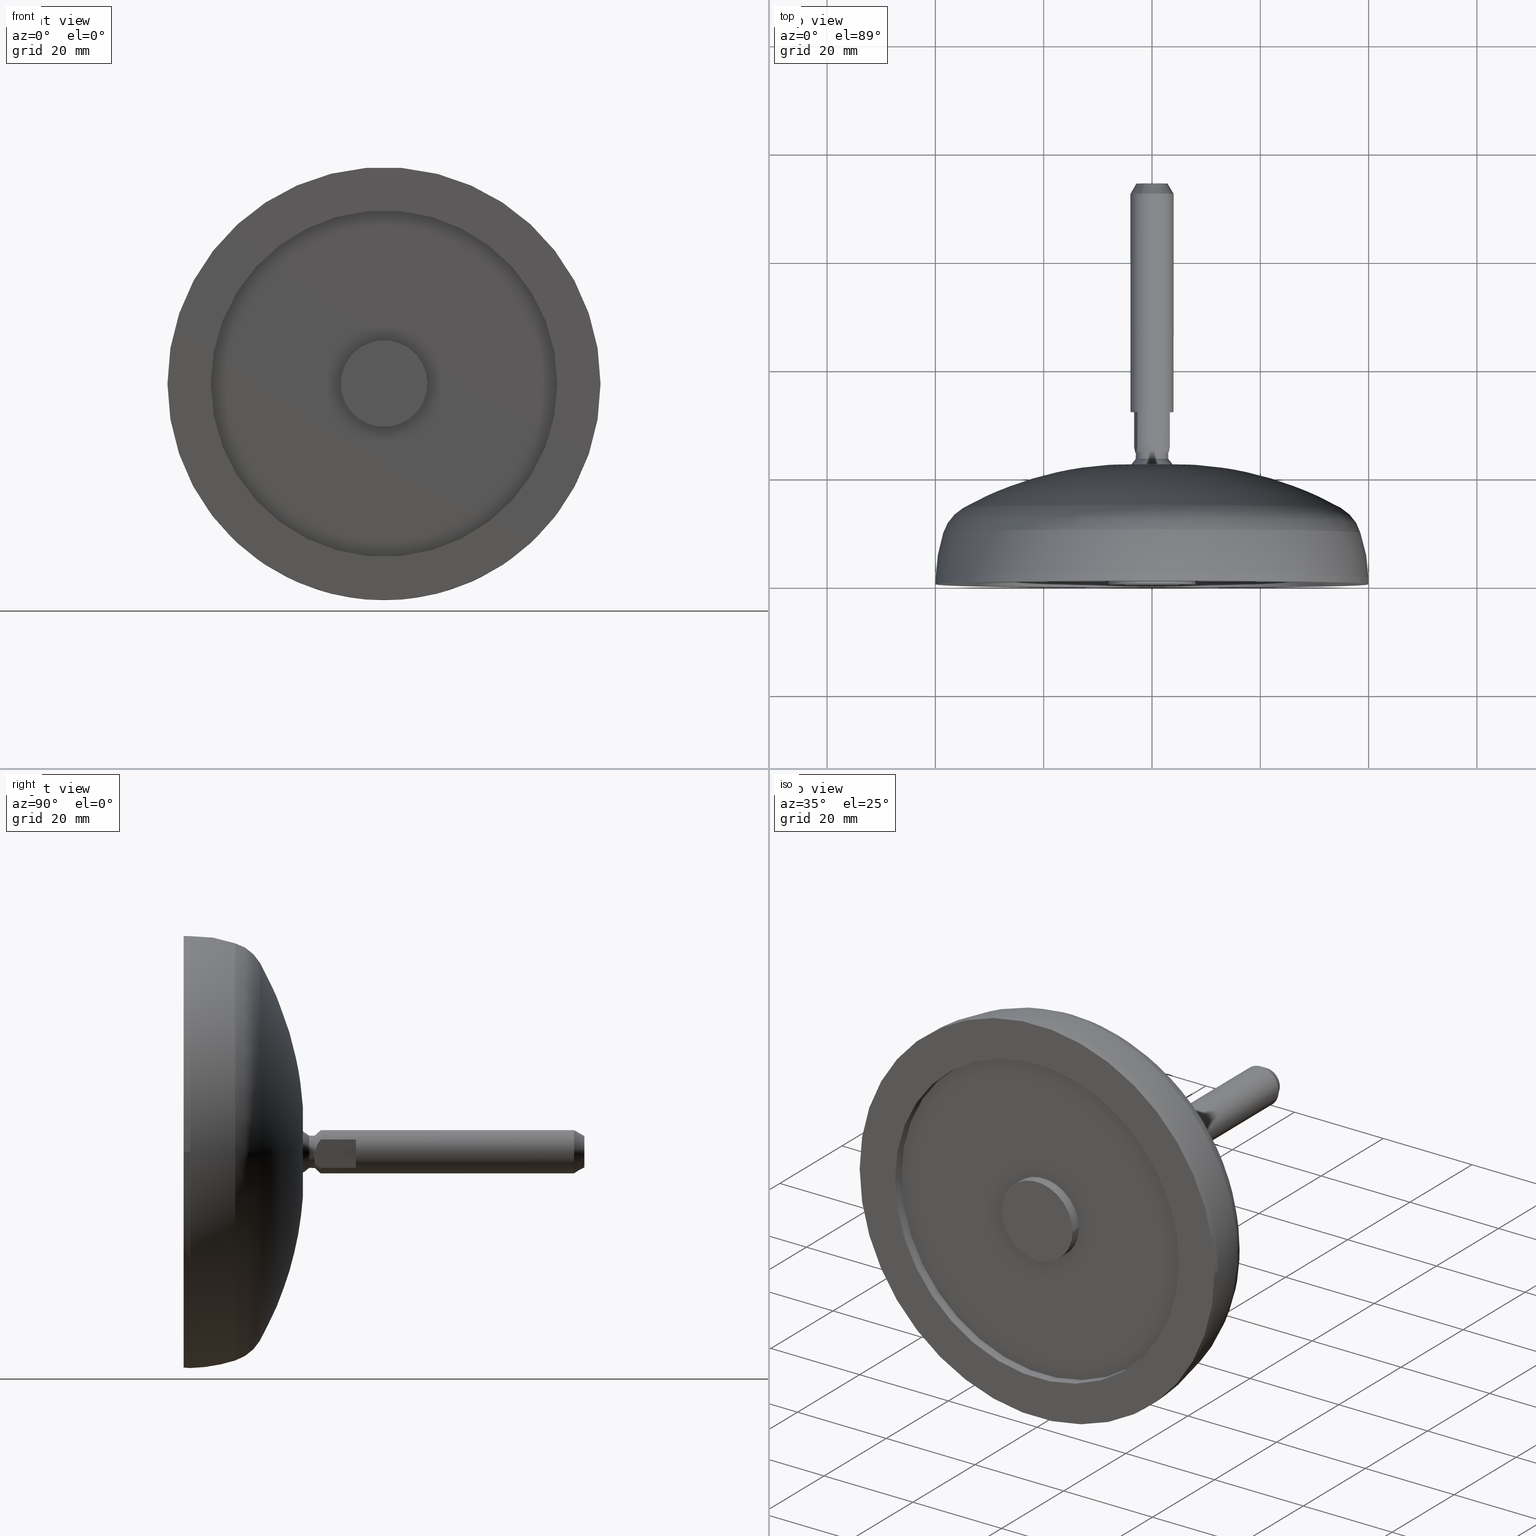
[diagram: canonical four-view strip — front | top / right | iso, engineering-drawing reading convention]
A machine part, canonical four-view strip (front | top / right | iso — engineering-drawing reading convention). The complete STEP part file that produces these views, byte-faithful:
ISO-10303-21;
HEADER;
/* Generated by software containing ST-Developer
 * from STEP Tools, Inc. (www.steptools.com) 
 */

FILE_DESCRIPTION(
/* description */ ('PIEDE SNODATO D=80 H=74 M8'),
/* implementation_level */ '2;1');

FILE_NAME(
/* name */ 
'Q:\\Catalogo\\2_Accessori Dierre\\Per Download Web e catalogo cartace
o\\CATALOGO PIEDI E SOSTEGNI\\PAGINA 49\\CPDSN0000036.stp',
/* time_stamp */ '2019-02-04T17:51:21+01:00',
/* author */ ('fzagni'),
/* organization */ (''),
/* preprocessor_version */ 'ST-DEVELOPER v17.2',
/* originating_system */ 'Autodesk Inventor 2019',
/* authorisation */ '');

FILE_SCHEMA (('AUTOMOTIVE_DESIGN { 1 0 10303 214 3 1 1 }'));
ENDSEC;

DATA;
#10=MECHANICAL_DESIGN_GEOMETRIC_PRESENTATION_REPRESENTATION('',(#31,#32,
#33),#1007);
#11=CONTEXT_DEPENDENT_OVER_RIDING_STYLED_ITEM('',(#1040),#1022,#33,(#18));
#12=CONTEXT_DEPENDENT_OVER_RIDING_STYLED_ITEM('',(#1039),#1021,#33,(#17));
#13=MAPPED_ITEM('',#14,#530);
#14=REPRESENTATION_MAP(#530,#1020);
#15=ITEM_DEFINED_TRANSFORMATION($,$,#465,#528);
#16=ITEM_DEFINED_TRANSFORMATION($,$,#502,#529);
#17=(
REPRESENTATION_RELATIONSHIP($,$,#1021,#1020)
REPRESENTATION_RELATIONSHIP_WITH_TRANSFORMATION(#15)
SHAPE_REPRESENTATION_RELATIONSHIP()
);
#18=(
REPRESENTATION_RELATIONSHIP($,$,#1022,#1020)
REPRESENTATION_RELATIONSHIP_WITH_TRANSFORMATION(#16)
SHAPE_REPRESENTATION_RELATIONSHIP()
);
#19=CONTEXT_DEPENDENT_SHAPE_REPRESENTATION(#17,#1018);
#20=CONTEXT_DEPENDENT_SHAPE_REPRESENTATION(#18,#1019);
#21=NEXT_ASSEMBLY_USAGE_OCCURRENCE('F3DTM0003593:1','F3DTM0003593:1',
'F3DTM0003593:1',#1024,#1025,'F3DTM0003593:1');
#22=NEXT_ASSEMBLY_USAGE_OCCURRENCE('F3DTM0003594:1','F3DTM0003594:1',
'F3DTM0003594:1',#1024,#1026,'F3DTM0003594:1');
#23=(
BOUNDED_CURVE()
B_SPLINE_CURVE(2,(#895,#896,#897),.UNSPECIFIED.,.F.,.F.)
B_SPLINE_CURVE_WITH_KNOTS((3,3),(-2.03134087025805,-1.3526245069002),
 .UNSPECIFIED.)
CURVE()
GEOMETRIC_REPRESENTATION_ITEM()
RATIONAL_B_SPLINE_CURVE((1.98131559154573,2.3115343695334,2.31153435390955))
REPRESENTATION_ITEM('')
);
#24=(
BOUNDED_CURVE()
B_SPLINE_CURVE(2,(#899,#900,#901),.UNSPECIFIED.,.F.,.F.)
B_SPLINE_CURVE_WITH_KNOTS((3,3),(-2.03134087025805,-1.35262453901275),
 .UNSPECIFIED.)
CURVE()
GEOMETRIC_REPRESENTATION_ITEM()
RATIONAL_B_SPLINE_CURVE((1.98131559154575,2.31153435390959,2.31153435390959))
REPRESENTATION_ITEM('')
);
#25=(
BOUNDED_CURVE()
B_SPLINE_CURVE(2,(#906,#907,#908),.UNSPECIFIED.,.F.,.F.)
B_SPLINE_CURVE_WITH_KNOTS((3,3),(-1.35262445118213,-0.673908173064005),
 .UNSPECIFIED.)
CURVE()
GEOMETRIC_REPRESENTATION_ITEM()
RATIONAL_B_SPLINE_CURVE((2.31153429188029,2.31153427625644,1.98131553837779))
REPRESENTATION_ITEM('')
);
#26=(
BOUNDED_CURVE()
B_SPLINE_CURVE(2,(#910,#911,#912),.UNSPECIFIED.,.F.,.F.)
B_SPLINE_CURVE_WITH_KNOTS((3,3),(-1.35262448329468,-0.673908173064),
 .UNSPECIFIED.)
CURVE()
GEOMETRIC_REPRESENTATION_ITEM()
RATIONAL_B_SPLINE_CURVE((2.31153429188032,2.31153429188032,1.9813155383778))
REPRESENTATION_ITEM('')
);
#27=SHAPE_REPRESENTATION_RELATIONSHIP('SRR','None',#1021,#29);
#28=SHAPE_REPRESENTATION_RELATIONSHIP('SRR','None',#1022,#30);
#29=ADVANCED_BREP_SHAPE_REPRESENTATION('',(#34),#1005);
#30=ADVANCED_BREP_SHAPE_REPRESENTATION('',(#35),#1006);
#31=STYLED_ITEM('',(#1041),#34);
#32=STYLED_ITEM('',(#1042),#35);
#33=STYLED_ITEM('',(#1043),#13);
#34=MANIFOLD_SOLID_BREP('Solido1',#421);
#35=MANIFOLD_SOLID_BREP('None_1',#422);
#36=CYLINDRICAL_SURFACE('',#495,8.);
#37=CYLINDRICAL_SURFACE('',#501,32.);
#38=CYLINDRICAL_SURFACE('',#503,3.99999847606768);
#39=CYLINDRICAL_SURFACE('',#523,3.);
#40=TOROIDAL_SURFACE('',#478,30.7394398328875,8.19242065290035);
#41=(
BOUNDED_SURFACE()
B_SPLINE_SURFACE(2,2,((#696,#697,#698,#699,#700,#701,#702,#703,#704),(#705,
#706,#707,#708,#709,#710,#711,#712,#713),(#714,#715,#716,#717,#718,#719,
#720,#721,#722)),.UNSPECIFIED.,.F.,.T.,.F.)
B_SPLINE_SURFACE_WITH_KNOTS((3,3),(3,2,2,2,3),(0.0256420201250304,0.308289333761939),
(-3.14159265358979,-1.5707963267949,0.,1.5707963267949,3.14159265358979),
 .UNSPECIFIED.)
GEOMETRIC_REPRESENTATION_ITEM()
RATIONAL_B_SPLINE_SURFACE(((1.,0.707106781186548,1.,0.707106781186548,1.,
0.707106781186548,1.,0.707106781186548,1.),(0.990030421608953,0.700057224700668,
0.990030421608953,0.700057224700668,0.990030421608953,0.700057224700668,
0.990030421608953,0.700057224700668,0.990030421608953),(1.,0.707106781186548,
1.,0.707106781186548,1.,0.707106781186548,1.,0.707106781186548,1.)))
REPRESENTATION_ITEM('')
SURFACE()
);
#42=(
BOUNDED_SURFACE()
B_SPLINE_SURFACE(2,2,((#734,#735,#736,#737,#738,#739,#740,#741,#742),(#743,
#744,#745,#746,#747,#748,#749,#750,#751),(#752,#753,#754,#755,#756,#757,
#758,#759,#760)),.UNSPECIFIED.,.F.,.T.,.F.)
B_SPLINE_SURFACE_WITH_KNOTS((3,3),(3,2,2,2,3),(1.0604937002301,1.50279016266621),
(-3.14159265358979,-1.5707963267949,0.,1.5707963267949,3.14159265358979),
 .UNSPECIFIED.)
GEOMETRIC_REPRESENTATION_ITEM()
RATIONAL_B_SPLINE_SURFACE(((1.,0.707106781186548,1.,0.707106781186548,1.,
0.707106781186548,1.,0.707106781186548,1.),(0.975646227991165,0.689886063851629,
0.975646227991165,0.689886063851629,0.975646227991165,0.689886063851629,
0.975646227991165,0.689886063851629,0.975646227991165),(1.,0.707106781186548,
1.,0.707106781186548,1.,0.707106781186548,1.,0.707106781186548,1.)))
REPRESENTATION_ITEM('')
SURFACE()
);
#43=(
BOUNDED_SURFACE()
B_SPLINE_SURFACE(2,2,((#771,#772,#773,#774,#775,#776,#777,#778,#779),(#780,
#781,#782,#783,#784,#785,#786,#787,#788),(#789,#790,#791,#792,#793,#794,
#795,#796,#797)),.UNSPECIFIED.,.F.,.T.,.F.)
B_SPLINE_SURFACE_WITH_KNOTS((3,3),(3,2,2,2,3),(0.338712591513884,0.748961646698906),
(-3.14159265358979,-1.5707963267949,0.,1.5707963267949,3.14159265358979),
 .UNSPECIFIED.)
GEOMETRIC_REPRESENTATION_ITEM()
RATIONAL_B_SPLINE_SURFACE(((1.,0.707106781186548,1.,0.707106781186548,1.,
0.707106781186548,1.,0.707106781186548,1.),(0.979035627200003,0.692282731016347,
0.979035627200003,0.692282731016347,0.979035627200003,0.692282731016347,
0.979035627200003,0.692282731016347,0.979035627200003),(1.,0.707106781186548,
1.,0.707106781186548,1.,0.707106781186548,1.,0.707106781186548,1.)))
REPRESENTATION_ITEM('')
SURFACE()
);
#44=(
BOUNDED_SURFACE()
B_SPLINE_SURFACE(2,2,((#803,#804,#805,#806,#807,#808,#809,#810,#811),(#812,
#813,#814,#815,#816,#817,#818,#819,#820),(#821,#822,#823,#824,#825,#826,
#827,#828,#829),(#830,#831,#832,#833,#834,#835,#836,#837,#838),(#839,#840,
#841,#842,#843,#844,#845,#846,#847)),.UNSPECIFIED.,.F.,.T.,.F.)
B_SPLINE_SURFACE_WITH_KNOTS((3,2,3),(3,2,2,2,3),(1.23208304605776,2.18683784982378,
3.14159265358979),(0.,1.5707963267949,3.14159265358979,4.71238898038469,
6.28318530717959),.UNSPECIFIED.)
GEOMETRIC_REPRESENTATION_ITEM()
RATIONAL_B_SPLINE_SURFACE(((1.,0.707106781186548,1.,0.707106781186548,1.,
0.707106781186548,1.,0.707106781186548,1.),(0.888202932204185,0.628054316431355,
0.888202932204185,0.628054316431355,0.888202932204185,0.628054316431355,
0.888202932204185,0.628054316431355,0.888202932204185),(1.,0.707106781186548,
1.,0.707106781186548,1.,0.707106781186548,1.,0.707106781186548,1.),(0.888202932204187,
0.628054316431356,0.888202932204187,0.628054316431356,0.888202932204187,
0.628054316431356,0.888202932204187,0.628054316431356,0.888202932204187),
(1.,0.707106781186548,1.,0.707106781186548,1.,0.707106781186548,1.,0.707106781186548,
1.)))
REPRESENTATION_ITEM('')
SURFACE()
);
#45=(
BOUNDED_SURFACE()
B_SPLINE_SURFACE(2,2,((#913,#914,#915,#916,#917,#918,#919,#920,#921),(#922,
#923,#924,#925,#926,#927,#928,#929,#930),(#931,#932,#933,#934,#935,#936,
#937,#938,#939),(#940,#941,#942,#943,#944,#945,#946,#947,#948),(#949,#950,
#951,#952,#953,#954,#955,#956,#957),(#958,#959,#960,#961,#962,#963,#964,
#965,#966),(#967,#968,#969,#970,#971,#972,#973,#974,#975)),
 .UNSPECIFIED.,.F.,.T.,.F.)
B_SPLINE_SURFACE_WITH_KNOTS((3,2,2,3),(3,2,2,2,3),(-1.E-8,0.333333333333333,
0.666666666666667,0.762543350477848),(-1.E-8,0.25,0.5,0.75,1.00000001),
 .UNSPECIFIED.)
GEOMETRIC_REPRESENTATION_ITEM()
RATIONAL_B_SPLINE_SURFACE(((1.00000003146998,0.707106775154914,1.00000000803852,
0.707106786870643,1.00000000803852,0.707106786870643,1.00000000803852,0.707106775154914,
1.00000003146998),(0.86602460120372,0.612371843690651,0.866024580911501,
0.61237185383676,0.866024580911501,0.61237185383676,0.866024580911501,0.612371843690651,
0.86602460120372),(1.00000002343146,0.707106769470819,1.,0.707106781186548,
1.,0.707106781186548,1.,0.707106769470819,1.00000002343146),(0.866024605222982,
0.612371846532699,0.866024584930763,0.612371856678808,0.866024584930763,
0.612371856678808,0.866024584930763,0.612371846532699,0.866024605222982),
(1.00000002343146,0.707106769470819,1.,0.707106781186548,1.,0.707106781186548,
1.,0.707106769470819,1.00000002343146),(0.961464667001323,0.679858158713574,
0.961464644472805,0.679858169977833,0.961464644472805,0.679858169977833,
0.961464644472805,0.679858158713574,0.961464667001323),(0.945097163675208,
0.668284586583528,0.945097141530204,0.668284597656029,0.945097141530204,
0.668284597656029,0.945097141530204,0.668284586583528,0.945097163675208)))
REPRESENTATION_ITEM('')
SURFACE()
);
#46=LINE('',#695,#58);
#47=LINE('',#860,#59);
#48=LINE('',#867,#60);
#49=LINE('',#874,#61);
#50=LINE('',#878,#62);
#51=LINE('',#882,#63);
#52=LINE('',#889,#64);
#53=LINE('',#892,#65);
#54=LINE('',#988,#66);
#55=LINE('',#990,#67);
#56=LINE('',#992,#68);
#57=LINE('',#995,#69);
#58=VECTOR('',#553,39.9666231759217);
#59=VECTOR('',#600,8.);
#60=VECTOR('',#609,32.);
#61=VECTOR('',#616,10.);
#62=VECTOR('',#619,10.);
#63=VECTOR('',#622,3.99999847606768);
#64=VECTOR('',#629,10.);
#65=VECTOR('',#632,10.);
#66=VECTOR('',#657,3.01000166976594);
#67=VECTOR('',#660,3.);
#68=VECTOR('',#663,5.2915658081811);
#69=VECTOR('',#668,5.2915658081811);
#70=CONICAL_SURFACE('',#471,39.9666231759217,0.0349065852914248);
#71=CONICAL_SURFACE('',#511,0.42000247402614,0.74152684070503);
#72=CONICAL_SURFACE('',#514,0.420002474026222,0.74152684070503);
#73=CONICAL_SURFACE('',#522,3.01000166976594,0.523598480833653);
#74=FACE_BOUND('',#101,.T.);
#75=FACE_BOUND('',#107,.T.);
#76=FACE_BOUND('',#113,.T.);
#77=FACE_OUTER_BOUND('',#100,.T.);
#78=FACE_OUTER_BOUND('',#102,.T.);
#79=FACE_OUTER_BOUND('',#103,.T.);
#80=FACE_OUTER_BOUND('',#104,.T.);
#81=FACE_OUTER_BOUND('',#105,.T.);
#82=FACE_OUTER_BOUND('',#106,.T.);
#83=FACE_OUTER_BOUND('',#108,.T.);
#84=FACE_OUTER_BOUND('',#109,.T.);
#85=FACE_OUTER_BOUND('',#110,.T.);
#86=FACE_OUTER_BOUND('',#111,.T.);
#87=FACE_OUTER_BOUND('',#112,.T.);
#88=FACE_OUTER_BOUND('',#114,.T.);
#89=FACE_OUTER_BOUND('',#115,.T.);
#90=FACE_OUTER_BOUND('',#116,.T.);
#91=FACE_OUTER_BOUND('',#117,.T.);
#92=FACE_OUTER_BOUND('',#118,.T.);
#93=FACE_OUTER_BOUND('',#119,.T.);
#94=FACE_OUTER_BOUND('',#120,.T.);
#95=FACE_OUTER_BOUND('',#121,.T.);
#96=FACE_OUTER_BOUND('',#122,.T.);
#97=FACE_OUTER_BOUND('',#123,.T.);
#98=FACE_OUTER_BOUND('',#124,.T.);
#99=FACE_OUTER_BOUND('',#125,.T.);
#100=EDGE_LOOP('',(#271,#272));
#101=EDGE_LOOP('',(#273,#274));
#102=EDGE_LOOP('',(#275,#276,#277,#278,#279,#280,#281));
#103=EDGE_LOOP('',(#282,#283,#284,#285,#286,#287,#288));
#104=EDGE_LOOP('',(#289,#290,#291,#292,#293,#294));
#105=EDGE_LOOP('',(#295,#296,#297,#298,#299,#300));
#106=EDGE_LOOP('',(#301,#302));
#107=EDGE_LOOP('',(#303,#304));
#108=EDGE_LOOP('',(#305,#306,#307,#308,#309,#310));
#109=EDGE_LOOP('',(#311,#312,#313,#314));
#110=EDGE_LOOP('',(#315,#316));
#111=EDGE_LOOP('',(#317,#318,#319,#320,#321,#322));
#112=EDGE_LOOP('',(#323,#324));
#113=EDGE_LOOP('',(#325,#326));
#114=EDGE_LOOP('',(#327,#328,#329,#330,#331,#332));
#115=EDGE_LOOP('',(#333,#334,#335,#336,#337,#338,#339,#340,#341,#342,#343,
#344,#345));
#116=EDGE_LOOP('',(#346,#347,#348,#349,#350,#351));
#117=EDGE_LOOP('',(#352,#353,#354,#355));
#118=EDGE_LOOP('',(#356,#357,#358,#359));
#119=EDGE_LOOP('',(#360,#361));
#120=EDGE_LOOP('',(#362,#363,#364,#365,#366,#367));
#121=EDGE_LOOP('',(#368,#369,#370,#371,#372,#373,#374));
#122=EDGE_LOOP('',(#375,#376));
#123=EDGE_LOOP('',(#377,#378,#379,#380,#381));
#124=EDGE_LOOP('',(#382,#383));
#125=EDGE_LOOP('',(#384,#385,#386,#387,#388));
#126=CIRCLE('',#467,39.9877846225111);
#127=CIRCLE('',#468,39.9877846225111);
#128=CIRCLE('',#469,32.);
#129=CIRCLE('',#470,32.);
#130=CIRCLE('',#472,39.9454617293322);
#131=CIRCLE('',#473,39.9454617293322);
#132=CIRCLE('',#474,39.9454617293322);
#133=CIRCLE('',#475,38.545620864977);
#134=CIRCLE('',#476,38.545620864977);
#135=CIRCLE('',#477,29.9001203827561);
#136=CIRCLE('',#479,34.8694444341819);
#137=CIRCLE('',#480,34.8694444341819);
#138=CIRCLE('',#481,8.19242065290035);
#139=CIRCLE('',#482,8.24029769404842);
#140=CIRCLE('',#483,8.24029769404842);
#141=CIRCLE('',#484,63.3292106186105);
#142=CIRCLE('',#486,5.3823080686156);
#143=CIRCLE('',#487,5.3823080686156);
#144=CIRCLE('',#488,5.96669050011933);
#145=CIRCLE('',#489,6.64000863288942);
#146=CIRCLE('',#490,6.64000863288942);
#147=CIRCLE('',#491,7.03999355827136);
#148=CIRCLE('',#493,8.);
#149=CIRCLE('',#494,8.);
#150=CIRCLE('',#496,8.);
#151=CIRCLE('',#497,8.);
#152=CIRCLE('',#499,32.);
#153=CIRCLE('',#500,32.);
#154=CIRCLE('',#504,3.99999847606768);
#155=CIRCLE('',#505,3.99999847606786);
#156=CIRCLE('',#506,3.99999847606768);
#157=CIRCLE('',#507,3.99999847606768);
#158=CIRCLE('',#508,3.99999847606768);
#159=CIRCLE('',#509,3.99999847606768);
#160=CIRCLE('',#510,3.99999847606786);
#161=CIRCLE('',#512,3.);
#162=CIRCLE('',#513,3.);
#163=CIRCLE('',#515,3.);
#164=CIRCLE('',#516,4.4);
#165=CIRCLE('',#517,3.);
#166=CIRCLE('',#518,3.);
#167=CIRCLE('',#520,2.90000200274686);
#168=CIRCLE('',#521,2.90000200274686);
#169=VERTEX_POINT('',#680);
#170=VERTEX_POINT('',#681);
#171=VERTEX_POINT('',#684);
#172=VERTEX_POINT('',#685);
#173=VERTEX_POINT('',#689);
#174=VERTEX_POINT('',#690);
#175=VERTEX_POINT('',#692);
#176=VERTEX_POINT('',#723);
#177=VERTEX_POINT('',#724);
#178=VERTEX_POINT('',#729);
#179=VERTEX_POINT('',#730);
#180=VERTEX_POINT('',#761);
#181=VERTEX_POINT('',#762);
#182=VERTEX_POINT('',#767);
#183=VERTEX_POINT('',#768);
#184=VERTEX_POINT('',#798);
#185=VERTEX_POINT('',#800);
#186=VERTEX_POINT('',#848);
#187=VERTEX_POINT('',#851);
#188=VERTEX_POINT('',#852);
#189=VERTEX_POINT('',#856);
#190=VERTEX_POINT('',#857);
#191=VERTEX_POINT('',#862);
#192=VERTEX_POINT('',#863);
#193=VERTEX_POINT('',#870);
#194=VERTEX_POINT('',#871);
#195=VERTEX_POINT('',#873);
#196=VERTEX_POINT('',#875);
#197=VERTEX_POINT('',#877);
#198=VERTEX_POINT('',#879);
#199=VERTEX_POINT('',#881);
#200=VERTEX_POINT('',#883);
#201=VERTEX_POINT('',#886);
#202=VERTEX_POINT('',#888);
#203=VERTEX_POINT('',#890);
#204=VERTEX_POINT('',#894);
#205=VERTEX_POINT('',#898);
#206=VERTEX_POINT('',#902);
#207=VERTEX_POINT('',#976);
#208=VERTEX_POINT('',#977);
#209=VERTEX_POINT('',#979);
#210=VERTEX_POINT('',#983);
#211=VERTEX_POINT('',#984);
#212=EDGE_CURVE('',#169,#170,#126,.T.);
#213=EDGE_CURVE('',#170,#169,#127,.T.);
#214=EDGE_CURVE('',#171,#172,#128,.T.);
#215=EDGE_CURVE('',#172,#171,#129,.T.);
#216=EDGE_CURVE('',#173,#174,#130,.T.);
#217=EDGE_CURVE('',#175,#173,#131,.T.);
#218=EDGE_CURVE('',#174,#175,#132,.T.);
#219=EDGE_CURVE('',#174,#170,#46,.T.);
#220=EDGE_CURVE('',#176,#177,#133,.T.);
#221=EDGE_CURVE('',#177,#176,#134,.T.);
#222=EDGE_CURVE('',#177,#175,#135,.T.);
#223=EDGE_CURVE('',#178,#179,#136,.T.);
#224=EDGE_CURVE('',#179,#178,#137,.T.);
#225=EDGE_CURVE('',#179,#177,#138,.T.);
#226=EDGE_CURVE('',#180,#181,#139,.T.);
#227=EDGE_CURVE('',#181,#180,#140,.T.);
#228=EDGE_CURVE('',#181,#179,#141,.T.);
#229=EDGE_CURVE('',#182,#183,#142,.T.);
#230=EDGE_CURVE('',#183,#182,#143,.T.);
#231=EDGE_CURVE('',#183,#184,#144,.T.);
#232=EDGE_CURVE('',#185,#184,#145,.T.);
#233=EDGE_CURVE('',#184,#185,#146,.T.);
#234=EDGE_CURVE('',#185,#186,#147,.T.);
#235=EDGE_CURVE('',#187,#188,#148,.T.);
#236=EDGE_CURVE('',#188,#187,#149,.T.);
#237=EDGE_CURVE('',#189,#190,#150,.T.);
#238=EDGE_CURVE('',#190,#189,#151,.T.);
#239=EDGE_CURVE('',#190,#188,#47,.T.);
#240=EDGE_CURVE('',#191,#192,#152,.T.);
#241=EDGE_CURVE('',#192,#191,#153,.T.);
#242=EDGE_CURVE('',#192,#172,#48,.T.);
#243=EDGE_CURVE('',#193,#194,#154,.T.);
#244=EDGE_CURVE('',#193,#195,#49,.T.);
#245=EDGE_CURVE('',#195,#196,#155,.T.);
#246=EDGE_CURVE('',#196,#197,#50,.T.);
#247=EDGE_CURVE('',#198,#197,#156,.T.);
#248=EDGE_CURVE('',#198,#199,#51,.T.);
#249=EDGE_CURVE('',#199,#200,#157,.T.);
#250=EDGE_CURVE('',#200,#199,#158,.T.);
#251=EDGE_CURVE('',#201,#198,#159,.T.);
#252=EDGE_CURVE('',#202,#201,#52,.T.);
#253=EDGE_CURVE('',#203,#202,#160,.T.);
#254=EDGE_CURVE('',#194,#203,#53,.T.);
#255=EDGE_CURVE('',#201,#204,#23,.T.);
#256=EDGE_CURVE('',#197,#205,#24,.T.);
#257=EDGE_CURVE('',#206,#205,#161,.T.);
#258=EDGE_CURVE('',#204,#206,#162,.T.);
#259=EDGE_CURVE('',#204,#194,#25,.T.);
#260=EDGE_CURVE('',#205,#204,#163,.T.);
#261=EDGE_CURVE('',#205,#193,#26,.T.);
#262=EDGE_CURVE('',#207,#208,#164,.T.);
#263=EDGE_CURVE('',#207,#209,#165,.T.);
#264=EDGE_CURVE('',#209,#207,#166,.T.);
#265=EDGE_CURVE('',#210,#211,#167,.T.);
#266=EDGE_CURVE('',#211,#210,#168,.T.);
#267=EDGE_CURVE('',#211,#200,#54,.T.);
#268=EDGE_CURVE('',#209,#206,#55,.T.);
#269=EDGE_CURVE('',#195,#196,#56,.T.);
#270=EDGE_CURVE('',#203,#202,#57,.T.);
#271=ORIENTED_EDGE('',*,*,#212,.F.);
#272=ORIENTED_EDGE('',*,*,#213,.F.);
#273=ORIENTED_EDGE('',*,*,#214,.T.);
#274=ORIENTED_EDGE('',*,*,#215,.T.);
#275=ORIENTED_EDGE('',*,*,#216,.F.);
#276=ORIENTED_EDGE('',*,*,#217,.F.);
#277=ORIENTED_EDGE('',*,*,#218,.F.);
#278=ORIENTED_EDGE('',*,*,#219,.T.);
#279=ORIENTED_EDGE('',*,*,#213,.T.);
#280=ORIENTED_EDGE('',*,*,#212,.T.);
#281=ORIENTED_EDGE('',*,*,#219,.F.);
#282=ORIENTED_EDGE('',*,*,#220,.F.);
#283=ORIENTED_EDGE('',*,*,#221,.F.);
#284=ORIENTED_EDGE('',*,*,#222,.T.);
#285=ORIENTED_EDGE('',*,*,#217,.T.);
#286=ORIENTED_EDGE('',*,*,#216,.T.);
#287=ORIENTED_EDGE('',*,*,#218,.T.);
#288=ORIENTED_EDGE('',*,*,#222,.F.);
#289=ORIENTED_EDGE('',*,*,#223,.F.);
#290=ORIENTED_EDGE('',*,*,#224,.F.);
#291=ORIENTED_EDGE('',*,*,#225,.T.);
#292=ORIENTED_EDGE('',*,*,#221,.T.);
#293=ORIENTED_EDGE('',*,*,#220,.T.);
#294=ORIENTED_EDGE('',*,*,#225,.F.);
#295=ORIENTED_EDGE('',*,*,#226,.F.);
#296=ORIENTED_EDGE('',*,*,#227,.F.);
#297=ORIENTED_EDGE('',*,*,#228,.T.);
#298=ORIENTED_EDGE('',*,*,#224,.T.);
#299=ORIENTED_EDGE('',*,*,#223,.T.);
#300=ORIENTED_EDGE('',*,*,#228,.F.);
#301=ORIENTED_EDGE('',*,*,#226,.T.);
#302=ORIENTED_EDGE('',*,*,#227,.T.);
#303=ORIENTED_EDGE('',*,*,#229,.F.);
#304=ORIENTED_EDGE('',*,*,#230,.F.);
#305=ORIENTED_EDGE('',*,*,#229,.T.);
#306=ORIENTED_EDGE('',*,*,#231,.T.);
#307=ORIENTED_EDGE('',*,*,#232,.F.);
#308=ORIENTED_EDGE('',*,*,#233,.F.);
#309=ORIENTED_EDGE('',*,*,#231,.F.);
#310=ORIENTED_EDGE('',*,*,#230,.T.);
#311=ORIENTED_EDGE('',*,*,#234,.T.);
#312=ORIENTED_EDGE('',*,*,#234,.F.);
#313=ORIENTED_EDGE('',*,*,#232,.T.);
#314=ORIENTED_EDGE('',*,*,#233,.T.);
#315=ORIENTED_EDGE('',*,*,#235,.F.);
#316=ORIENTED_EDGE('',*,*,#236,.F.);
#317=ORIENTED_EDGE('',*,*,#237,.F.);
#318=ORIENTED_EDGE('',*,*,#238,.F.);
#319=ORIENTED_EDGE('',*,*,#239,.T.);
#320=ORIENTED_EDGE('',*,*,#236,.T.);
#321=ORIENTED_EDGE('',*,*,#235,.T.);
#322=ORIENTED_EDGE('',*,*,#239,.F.);
#323=ORIENTED_EDGE('',*,*,#240,.F.);
#324=ORIENTED_EDGE('',*,*,#241,.F.);
#325=ORIENTED_EDGE('',*,*,#237,.T.);
#326=ORIENTED_EDGE('',*,*,#238,.T.);
#327=ORIENTED_EDGE('',*,*,#240,.T.);
#328=ORIENTED_EDGE('',*,*,#242,.T.);
#329=ORIENTED_EDGE('',*,*,#214,.F.);
#330=ORIENTED_EDGE('',*,*,#215,.F.);
#331=ORIENTED_EDGE('',*,*,#242,.F.);
#332=ORIENTED_EDGE('',*,*,#241,.T.);
#333=ORIENTED_EDGE('',*,*,#243,.F.);
#334=ORIENTED_EDGE('',*,*,#244,.T.);
#335=ORIENTED_EDGE('',*,*,#245,.T.);
#336=ORIENTED_EDGE('',*,*,#246,.T.);
#337=ORIENTED_EDGE('',*,*,#247,.F.);
#338=ORIENTED_EDGE('',*,*,#248,.T.);
#339=ORIENTED_EDGE('',*,*,#249,.T.);
#340=ORIENTED_EDGE('',*,*,#250,.T.);
#341=ORIENTED_EDGE('',*,*,#248,.F.);
#342=ORIENTED_EDGE('',*,*,#251,.F.);
#343=ORIENTED_EDGE('',*,*,#252,.F.);
#344=ORIENTED_EDGE('',*,*,#253,.F.);
#345=ORIENTED_EDGE('',*,*,#254,.F.);
#346=ORIENTED_EDGE('',*,*,#255,.F.);
#347=ORIENTED_EDGE('',*,*,#251,.T.);
#348=ORIENTED_EDGE('',*,*,#247,.T.);
#349=ORIENTED_EDGE('',*,*,#256,.T.);
#350=ORIENTED_EDGE('',*,*,#257,.F.);
#351=ORIENTED_EDGE('',*,*,#258,.F.);
#352=ORIENTED_EDGE('',*,*,#259,.F.);
#353=ORIENTED_EDGE('',*,*,#260,.F.);
#354=ORIENTED_EDGE('',*,*,#261,.T.);
#355=ORIENTED_EDGE('',*,*,#243,.T.);
#356=ORIENTED_EDGE('',*,*,#262,.F.);
#357=ORIENTED_EDGE('',*,*,#263,.T.);
#358=ORIENTED_EDGE('',*,*,#264,.T.);
#359=ORIENTED_EDGE('',*,*,#262,.T.);
#360=ORIENTED_EDGE('',*,*,#265,.F.);
#361=ORIENTED_EDGE('',*,*,#266,.F.);
#362=ORIENTED_EDGE('',*,*,#265,.T.);
#363=ORIENTED_EDGE('',*,*,#267,.T.);
#364=ORIENTED_EDGE('',*,*,#249,.F.);
#365=ORIENTED_EDGE('',*,*,#250,.F.);
#366=ORIENTED_EDGE('',*,*,#267,.F.);
#367=ORIENTED_EDGE('',*,*,#266,.T.);
#368=ORIENTED_EDGE('',*,*,#264,.F.);
#369=ORIENTED_EDGE('',*,*,#268,.T.);
#370=ORIENTED_EDGE('',*,*,#257,.T.);
#371=ORIENTED_EDGE('',*,*,#260,.T.);
#372=ORIENTED_EDGE('',*,*,#258,.T.);
#373=ORIENTED_EDGE('',*,*,#268,.F.);
#374=ORIENTED_EDGE('',*,*,#263,.F.);
#375=ORIENTED_EDGE('',*,*,#269,.T.);
#376=ORIENTED_EDGE('',*,*,#245,.F.);
#377=ORIENTED_EDGE('',*,*,#269,.F.);
#378=ORIENTED_EDGE('',*,*,#244,.F.);
#379=ORIENTED_EDGE('',*,*,#261,.F.);
#380=ORIENTED_EDGE('',*,*,#256,.F.);
#381=ORIENTED_EDGE('',*,*,#246,.F.);
#382=ORIENTED_EDGE('',*,*,#253,.T.);
#383=ORIENTED_EDGE('',*,*,#270,.F.);
#384=ORIENTED_EDGE('',*,*,#252,.T.);
#385=ORIENTED_EDGE('',*,*,#255,.T.);
#386=ORIENTED_EDGE('',*,*,#259,.T.);
#387=ORIENTED_EDGE('',*,*,#254,.T.);
#388=ORIENTED_EDGE('',*,*,#270,.T.);
#389=PLANE('',#466);
#390=PLANE('',#485);
#391=PLANE('',#492);
#392=PLANE('',#498);
#393=PLANE('',#519);
#394=PLANE('',#524);
#395=PLANE('',#525);
#396=PLANE('',#526);
#397=PLANE('',#527);
#398=ADVANCED_FACE('',(#77,#74),#389,.T.);
#399=ADVANCED_FACE('',(#78),#70,.T.);
#400=ADVANCED_FACE('',(#79),#41,.F.);
#401=ADVANCED_FACE('',(#80),#40,.T.);
#402=ADVANCED_FACE('',(#81),#42,.F.);
#403=ADVANCED_FACE('',(#82,#75),#390,.T.);
#404=ADVANCED_FACE('',(#83),#43,.T.);
#405=ADVANCED_FACE('',(#84),#44,.T.);
#406=ADVANCED_FACE('',(#85),#391,.T.);
#407=ADVANCED_FACE('',(#86),#36,.T.);
#408=ADVANCED_FACE('',(#87,#76),#392,.T.);
#409=ADVANCED_FACE('',(#88),#37,.F.);
#410=ADVANCED_FACE('',(#89),#38,.T.);
#411=ADVANCED_FACE('',(#90),#71,.T.);
#412=ADVANCED_FACE('',(#91),#72,.T.);
#413=ADVANCED_FACE('',(#92),#45,.T.);
#414=ADVANCED_FACE('',(#93),#393,.T.);
#415=ADVANCED_FACE('',(#94),#73,.T.);
#416=ADVANCED_FACE('',(#95),#39,.T.);
#417=ADVANCED_FACE('',(#96),#394,.F.);
#418=ADVANCED_FACE('',(#97),#395,.F.);
#419=ADVANCED_FACE('',(#98),#396,.T.);
#420=ADVANCED_FACE('',(#99),#397,.T.);
#421=CLOSED_SHELL('',(#398,#399,#400,#401,#402,#403,#404,#405,#406,#407,
#408,#409));
#422=CLOSED_SHELL('',(#410,#411,#412,#413,#414,#415,#416,#417,#418,#419,
#420));
#423=DERIVED_UNIT_ELEMENT(#427,1.);
#424=DERIVED_UNIT_ELEMENT(#1009,3.);
#425=DERIVED_UNIT_ELEMENT(#427,1.);
#426=DERIVED_UNIT_ELEMENT(#1009,3.);
#427=(
MASS_UNIT()
NAMED_UNIT(*)
SI_UNIT($,.GRAM.)
);
#428=DERIVED_UNIT((#423,#424));
#429=DERIVED_UNIT((#425,#426));
#430=MEASURE_REPRESENTATION_ITEM('density measure',
POSITIVE_RATIO_MEASURE(1.13),#428);
#431=MEASURE_REPRESENTATION_ITEM('density measure',
POSITIVE_RATIO_MEASURE(2.71),#429);
#432=PROPERTY_DEFINITION_REPRESENTATION(#442,#436);
#433=PROPERTY_DEFINITION_REPRESENTATION(#443,#437);
#434=PROPERTY_DEFINITION_REPRESENTATION(#444,#438);
#435=PROPERTY_DEFINITION_REPRESENTATION(#445,#439);
#436=REPRESENTATION('material name',(#440),#1005);
#437=REPRESENTATION('density',(#430),#1005);
#438=REPRESENTATION('material name',(#441),#1006);
#439=REPRESENTATION('density',(#431),#1006);
#440=DESCRIPTIVE_REPRESENTATION_ITEM('NYLON','NYLON');
#441=DESCRIPTIVE_REPRESENTATION_ITEM('ALLUMINIO','ALLUMINIO');
#442=PROPERTY_DEFINITION('material property','material name',#1025);
#443=PROPERTY_DEFINITION('material property','density of part',#1025);
#444=PROPERTY_DEFINITION('material property','material name',#1026);
#445=PROPERTY_DEFINITION('material property','density of part',#1026);
#446=DATE_TIME_ROLE('creation_date');
#447=DATE_TIME_ROLE('creation_date');
#448=DATE_TIME_ROLE('creation_date');
#449=APPLIED_DATE_AND_TIME_ASSIGNMENT(#452,#446,(#1024));
#450=APPLIED_DATE_AND_TIME_ASSIGNMENT(#453,#447,(#1025));
#451=APPLIED_DATE_AND_TIME_ASSIGNMENT(#454,#448,(#1026));
#452=DATE_AND_TIME(#455,#458);
#453=DATE_AND_TIME(#456,#459);
#454=DATE_AND_TIME(#457,#460);
#455=CALENDAR_DATE(2013,28,11);
#456=CALENDAR_DATE(2015,9,12);
#457=CALENDAR_DATE(2015,9,12);
#458=LOCAL_TIME(14,10,49.,#461);
#459=LOCAL_TIME(23,0,0.,#462);
#460=LOCAL_TIME(23,0,0.,#463);
#461=COORDINATED_UNIVERSAL_TIME_OFFSET(0,0,.BEHIND.);
#462=COORDINATED_UNIVERSAL_TIME_OFFSET(0,0,.BEHIND.);
#463=COORDINATED_UNIVERSAL_TIME_OFFSET(0,0,.BEHIND.);
#464=AXIS2_PLACEMENT_3D('placement',#677,#531,#532);
#465=AXIS2_PLACEMENT_3D('placement',#678,#533,#534);
#466=AXIS2_PLACEMENT_3D('',#679,#535,#536);
#467=AXIS2_PLACEMENT_3D('',#682,#537,#538);
#468=AXIS2_PLACEMENT_3D('',#683,#539,#540);
#469=AXIS2_PLACEMENT_3D('',#686,#541,#542);
#470=AXIS2_PLACEMENT_3D('',#687,#543,#544);
#471=AXIS2_PLACEMENT_3D('',#688,#545,#546);
#472=AXIS2_PLACEMENT_3D('',#691,#547,#548);
#473=AXIS2_PLACEMENT_3D('',#693,#549,#550);
#474=AXIS2_PLACEMENT_3D('',#694,#551,#552);
#475=AXIS2_PLACEMENT_3D('',#725,#554,#555);
#476=AXIS2_PLACEMENT_3D('',#726,#556,#557);
#477=AXIS2_PLACEMENT_3D('',#727,#558,#559);
#478=AXIS2_PLACEMENT_3D('',#728,#560,#561);
#479=AXIS2_PLACEMENT_3D('',#731,#562,#563);
#480=AXIS2_PLACEMENT_3D('',#732,#564,#565);
#481=AXIS2_PLACEMENT_3D('',#733,#566,#567);
#482=AXIS2_PLACEMENT_3D('',#763,#568,#569);
#483=AXIS2_PLACEMENT_3D('',#764,#570,#571);
#484=AXIS2_PLACEMENT_3D('',#765,#572,#573);
#485=AXIS2_PLACEMENT_3D('',#766,#574,#575);
#486=AXIS2_PLACEMENT_3D('',#769,#576,#577);
#487=AXIS2_PLACEMENT_3D('',#770,#578,#579);
#488=AXIS2_PLACEMENT_3D('',#799,#580,#581);
#489=AXIS2_PLACEMENT_3D('',#801,#582,#583);
#490=AXIS2_PLACEMENT_3D('',#802,#584,#585);
#491=AXIS2_PLACEMENT_3D('',#849,#586,#587);
#492=AXIS2_PLACEMENT_3D('',#850,#588,#589);
#493=AXIS2_PLACEMENT_3D('',#853,#590,#591);
#494=AXIS2_PLACEMENT_3D('',#854,#592,#593);
#495=AXIS2_PLACEMENT_3D('',#855,#594,#595);
#496=AXIS2_PLACEMENT_3D('',#858,#596,#597);
#497=AXIS2_PLACEMENT_3D('',#859,#598,#599);
#498=AXIS2_PLACEMENT_3D('',#861,#601,#602);
#499=AXIS2_PLACEMENT_3D('',#864,#603,#604);
#500=AXIS2_PLACEMENT_3D('',#865,#605,#606);
#501=AXIS2_PLACEMENT_3D('',#866,#607,#608);
#502=AXIS2_PLACEMENT_3D('placement',#868,#610,#611);
#503=AXIS2_PLACEMENT_3D('',#869,#612,#613);
#504=AXIS2_PLACEMENT_3D('',#872,#614,#615);
#505=AXIS2_PLACEMENT_3D('',#876,#617,#618);
#506=AXIS2_PLACEMENT_3D('',#880,#620,#621);
#507=AXIS2_PLACEMENT_3D('',#884,#623,#624);
#508=AXIS2_PLACEMENT_3D('',#885,#625,#626);
#509=AXIS2_PLACEMENT_3D('',#887,#627,#628);
#510=AXIS2_PLACEMENT_3D('',#891,#630,#631);
#511=AXIS2_PLACEMENT_3D('',#893,#633,#634);
#512=AXIS2_PLACEMENT_3D('',#903,#635,#636);
#513=AXIS2_PLACEMENT_3D('',#904,#637,#638);
#514=AXIS2_PLACEMENT_3D('',#905,#639,#640);
#515=AXIS2_PLACEMENT_3D('',#909,#641,#642);
#516=AXIS2_PLACEMENT_3D('',#978,#643,#644);
#517=AXIS2_PLACEMENT_3D('',#980,#645,#646);
#518=AXIS2_PLACEMENT_3D('',#981,#647,#648);
#519=AXIS2_PLACEMENT_3D('',#982,#649,#650);
#520=AXIS2_PLACEMENT_3D('',#985,#651,#652);
#521=AXIS2_PLACEMENT_3D('',#986,#653,#654);
#522=AXIS2_PLACEMENT_3D('',#987,#655,#656);
#523=AXIS2_PLACEMENT_3D('',#989,#658,#659);
#524=AXIS2_PLACEMENT_3D('',#991,#661,#662);
#525=AXIS2_PLACEMENT_3D('',#993,#664,#665);
#526=AXIS2_PLACEMENT_3D('',#994,#666,#667);
#527=AXIS2_PLACEMENT_3D('',#996,#669,#670);
#528=AXIS2_PLACEMENT_3D('',#997,#671,#672);
#529=AXIS2_PLACEMENT_3D('',#998,#673,#674);
#530=AXIS2_PLACEMENT_3D('',#999,#675,#676);
#531=DIRECTION('axis',(0.,0.,1.));
#532=DIRECTION('refdir',(1.,0.,0.));
#533=DIRECTION('axis',(0.,0.,1.));
#534=DIRECTION('refdir',(1.,0.,0.));
#535=DIRECTION('center_axis',(1.29031692906312E-13,-1.,0.));
#536=DIRECTION('ref_axis',(0.,0.,-1.));
#537=DIRECTION('center_axis',(-1.29031692906312E-13,1.,0.));
#538=DIRECTION('ref_axis',(-1.,-1.2903169675847E-13,0.));
#539=DIRECTION('center_axis',(-1.29031692906312E-13,1.,0.));
#540=DIRECTION('ref_axis',(-1.,-1.2903169675847E-13,0.));
#541=DIRECTION('center_axis',(-1.29031692906312E-13,1.,0.));
#542=DIRECTION('ref_axis',(-1.,-1.2903169675847E-13,0.));
#543=DIRECTION('center_axis',(-1.29031692906312E-13,1.,0.));
#544=DIRECTION('ref_axis',(-1.,-1.2903169675847E-13,0.));
#545=DIRECTION('center_axis',(1.29031692906312E-13,-1.,0.));
#546=DIRECTION('ref_axis',(-1.,-1.2903169675847E-13,0.));
#547=DIRECTION('center_axis',(-1.29031692906312E-13,1.,0.));
#548=DIRECTION('ref_axis',(-1.,-1.2903169675847E-13,0.));
#549=DIRECTION('center_axis',(-1.29031692906312E-13,1.,0.));
#550=DIRECTION('ref_axis',(-1.,-1.2903169675847E-13,0.));
#551=DIRECTION('center_axis',(-1.29031692906312E-13,1.,0.));
#552=DIRECTION('ref_axis',(-1.,-1.2903169675847E-13,0.));
#553=DIRECTION('',(0.0348994969540149,-0.999390827010313,-4.27395572364292E-18));
#554=DIRECTION('center_axis',(-1.29031692906312E-13,1.,0.));
#555=DIRECTION('ref_axis',(-1.,-1.29031696758471E-13,0.));
#556=DIRECTION('center_axis',(-1.29031692906312E-13,1.,0.));
#557=DIRECTION('ref_axis',(-1.,-1.29031696758471E-13,0.));
#558=DIRECTION('center_axis',(-1.,-1.29031692906312E-13,1.22464679914735E-16));
#559=DIRECTION('ref_axis',(-1.22464679914735E-16,0.,-1.));
#560=DIRECTION('center_axis',(-1.29031692906312E-13,1.,0.));
#561=DIRECTION('ref_axis',(0.,0.,1.));
#562=DIRECTION('center_axis',(-1.29031692906312E-13,1.,0.));
#563=DIRECTION('ref_axis',(-1.,-1.2903169675847E-13,0.));
#564=DIRECTION('center_axis',(-1.29031692906312E-13,1.,0.));
#565=DIRECTION('ref_axis',(-1.,-1.2903169675847E-13,0.));
#566=DIRECTION('center_axis',(-1.,-1.29031692906312E-13,1.22464679914736E-16));
#567=DIRECTION('ref_axis',(-1.22464679914736E-16,0.,-1.));
#568=DIRECTION('center_axis',(-1.29031692906312E-13,1.,0.));
#569=DIRECTION('ref_axis',(-1.,-1.2903169675847E-13,0.));
#570=DIRECTION('center_axis',(-1.29031692906312E-13,1.,0.));
#571=DIRECTION('ref_axis',(-1.,-1.2903169675847E-13,0.));
#572=DIRECTION('center_axis',(-1.,-1.29031692906312E-13,1.22464679914734E-16));
#573=DIRECTION('ref_axis',(-1.22464679914734E-16,0.,-1.));
#574=DIRECTION('center_axis',(-1.29031692906312E-13,1.,0.));
#575=DIRECTION('ref_axis',(0.,0.,1.));
#576=DIRECTION('center_axis',(-1.29031692906312E-13,1.,0.));
#577=DIRECTION('ref_axis',(-1.,-1.29031696758471E-13,0.));
#578=DIRECTION('center_axis',(-1.29031692906312E-13,1.,0.));
#579=DIRECTION('ref_axis',(-1.,-1.29031696758471E-13,0.));
#580=DIRECTION('center_axis',(-1.,-1.29031692906312E-13,1.22464679914759E-16));
#581=DIRECTION('ref_axis',(-1.22464679914759E-16,0.,-1.));
#582=DIRECTION('center_axis',(-1.29031692906312E-13,1.,0.));
#583=DIRECTION('ref_axis',(-1.,-1.2903169675847E-13,0.));
#584=DIRECTION('center_axis',(-1.29031692906312E-13,1.,0.));
#585=DIRECTION('ref_axis',(-1.,-1.2903169675847E-13,0.));
#586=DIRECTION('center_axis',(0.,0.,1.));
#587=DIRECTION('ref_axis',(0.943183218251825,-0.332273105755086,0.));
#588=DIRECTION('center_axis',(1.29031692906312E-13,-1.,0.));
#589=DIRECTION('ref_axis',(0.,0.,-1.));
#590=DIRECTION('center_axis',(-1.29031692906312E-13,1.,0.));
#591=DIRECTION('ref_axis',(-1.,-1.29031696758471E-13,0.));
#592=DIRECTION('center_axis',(-1.29031692906312E-13,1.,0.));
#593=DIRECTION('ref_axis',(-1.,-1.29031696758471E-13,0.));
#594=DIRECTION('center_axis',(-1.29031692906312E-13,1.,0.));
#595=DIRECTION('ref_axis',(-1.,-1.2903169675847E-13,0.));
#596=DIRECTION('center_axis',(-1.29031692906312E-13,1.,0.));
#597=DIRECTION('ref_axis',(-1.,-1.2903169675847E-13,0.));
#598=DIRECTION('center_axis',(-1.29031692906312E-13,1.,0.));
#599=DIRECTION('ref_axis',(-1.,-1.2903169675847E-13,0.));
#600=DIRECTION('',(1.29031692906312E-13,-1.,0.));
#601=DIRECTION('center_axis',(1.29031692906312E-13,-1.,0.));
#602=DIRECTION('ref_axis',(0.,0.,-1.));
#603=DIRECTION('center_axis',(-1.29031692906312E-13,1.,0.));
#604=DIRECTION('ref_axis',(-1.,-1.2903169675847E-13,0.));
#605=DIRECTION('center_axis',(-1.29031692906312E-13,1.,0.));
#606=DIRECTION('ref_axis',(-1.,-1.2903169675847E-13,0.));
#607=DIRECTION('center_axis',(-1.29031692906312E-13,1.,0.));
#608=DIRECTION('ref_axis',(-1.,-1.2903169675847E-13,0.));
#609=DIRECTION('',(1.29031692906312E-13,-1.,0.));
#610=DIRECTION('axis',(0.,0.,1.));
#611=DIRECTION('refdir',(1.,0.,0.));
#612=DIRECTION('center_axis',(-3.00065037E-7,0.,-0.999999999999955));
#613=DIRECTION('ref_axis',(-0.999999999999955,0.,3.00065037E-7));
#614=DIRECTION('center_axis',(-3.00065037E-7,0.,-0.999999999999955));
#615=DIRECTION('ref_axis',(-0.999999999999955,0.,3.00065037E-7));
#616=DIRECTION('',(3.00065037E-7,0.,0.999999999999955));
#617=DIRECTION('center_axis',(0.,0.,1.));
#618=DIRECTION('ref_axis',(-1.,0.,0.));
#619=DIRECTION('',(-3.00065037E-7,0.,-0.999999999999955));
#620=DIRECTION('center_axis',(-3.00065037E-7,0.,-0.999999999999955));
#621=DIRECTION('ref_axis',(-0.999999999999955,0.,3.00065037E-7));
#622=DIRECTION('',(3.00065037E-7,0.,0.999999999999955));
#623=DIRECTION('center_axis',(-3.00065037E-7,0.,-0.999999999999955));
#624=DIRECTION('ref_axis',(-0.999999999999955,0.,3.00065037E-7));
#625=DIRECTION('center_axis',(-3.00065037E-7,0.,-0.999999999999955));
#626=DIRECTION('ref_axis',(-0.999999999999955,0.,3.00065037E-7));
#627=DIRECTION('center_axis',(-3.00065037E-7,0.,-0.999999999999955));
#628=DIRECTION('ref_axis',(-0.999999999999955,0.,3.00065037E-7));
#629=DIRECTION('',(-3.00065037E-7,0.,-0.999999999999955));
#630=DIRECTION('center_axis',(0.,0.,-1.));
#631=DIRECTION('ref_axis',(-1.,0.,0.));
#632=DIRECTION('',(3.00065037E-7,0.,0.999999999999955));
#633=DIRECTION('center_axis',(3.0006503727212E-7,2.41650588325509E-16,0.999999999999955));
#634=DIRECTION('ref_axis',(0.999999999999955,1.78828691530956E-8,-3.0006503727212E-7));
#635=DIRECTION('center_axis',(-3.00065037E-7,0.,-0.999999999999955));
#636=DIRECTION('ref_axis',(-0.999999999999955,0.,3.00065037E-7));
#637=DIRECTION('center_axis',(-3.00065037E-7,0.,-0.999999999999955));
#638=DIRECTION('ref_axis',(-0.999999999999955,0.,3.00065037E-7));
#639=DIRECTION('center_axis',(3.00065037218911E-7,1.2295223854103E-15,0.999999999999955));
#640=DIRECTION('ref_axis',(-0.999999999999955,-1.78828703921739E-8,3.00065037218911E-7));
#641=DIRECTION('center_axis',(-3.00065037E-7,0.,-0.999999999999955));
#642=DIRECTION('ref_axis',(-0.999999999999955,0.,3.00065037E-7));
#643=DIRECTION('center_axis',(0.,-1.,0.));
#644=DIRECTION('ref_axis',(-0.999999999999955,0.,3.00065037E-7));
#645=DIRECTION('center_axis',(-3.00065037E-7,0.,-0.999999999999955));
#646=DIRECTION('ref_axis',(-0.999999999999955,0.,3.00065037E-7));
#647=DIRECTION('center_axis',(-3.00065037E-7,0.,-0.999999999999955));
#648=DIRECTION('ref_axis',(-0.999999999999955,0.,3.00065037E-7));
#649=DIRECTION('center_axis',(3.00065037E-7,0.,0.999999999999955));
#650=DIRECTION('ref_axis',(0.999999999999955,0.,-3.00065037E-7));
#651=DIRECTION('center_axis',(-3.00065037E-7,0.,-0.999999999999955));
#652=DIRECTION('ref_axis',(-0.999999999999955,0.,3.00065037E-7));
#653=DIRECTION('center_axis',(-3.00065037E-7,0.,-0.999999999999955));
#654=DIRECTION('ref_axis',(-0.999999999999955,0.,3.00065037E-7));
#655=DIRECTION('center_axis',(-3.02238760411994E-7,-1.01367781864521E-8,
-0.999999999999954));
#656=DIRECTION('ref_axis',(-0.813826051203303,0.581108559894605,2.40079208332785E-7));
#657=DIRECTION('',(0.406912556106781,-0.290554140384283,-0.866025671206227));
#658=DIRECTION('center_axis',(-3.00065037E-7,0.,-0.999999999999955));
#659=DIRECTION('ref_axis',(-0.999999999999955,0.,3.00065037E-7));
#660=DIRECTION('',(3.00065037E-7,0.,0.999999999999955));
#661=DIRECTION('center_axis',(0.,0.,1.));
#662=DIRECTION('ref_axis',(1.,0.,0.));
#663=DIRECTION('',(1.,0.,0.));
#664=DIRECTION('center_axis',(0.,1.,0.));
#665=DIRECTION('ref_axis',(0.,0.,1.));
#666=DIRECTION('center_axis',(0.,0.,-1.));
#667=DIRECTION('ref_axis',(-1.,0.,0.));
#668=DIRECTION('',(1.,0.,0.));
#669=DIRECTION('center_axis',(0.,1.,0.));
#670=DIRECTION('ref_axis',(0.,0.,1.));
#671=DIRECTION('',(0.,0.,1.));
#672=DIRECTION('',(1.,0.,0.));
#673=DIRECTION('',(-1.28802545662616E-13,1.,9.29933667481031E-16));
#674=DIRECTION('',(0.118405975932326,1.43275992877376E-14,0.992965268709593));
#675=DIRECTION('center_axis',(0.,0.,1.));
#676=DIRECTION('ref_axis',(1.,0.,0.));
#677=CARTESIAN_POINT('',(0.,0.,0.));
#678=CARTESIAN_POINT('',(0.,0.,0.));
#679=CARTESIAN_POINT('Origin',(-35.9938923112555,2.57214303068382E-8,0.));
#680=CARTESIAN_POINT('',(-39.9877846225111,2.57209152067228E-8,0.));
#681=CARTESIAN_POINT('',(39.9877846225111,2.57312345042227E-8,-4.8970912442952E-15));
#682=CARTESIAN_POINT('Origin',(6.66133482827207E-15,2.57260748982987E-8,
0.));
#683=CARTESIAN_POINT('Origin',(6.66133482827207E-15,2.57260748982987E-8,
0.));
#684=CARTESIAN_POINT('',(-32.,2.57219454069535E-8,0.));
#685=CARTESIAN_POINT('',(32.,2.57302033845885E-8,-3.91886975727152E-15));
#686=CARTESIAN_POINT('Origin',(6.66133482827213E-15,2.57260744212498E-8,
0.));
#687=CARTESIAN_POINT('Origin',(6.66133482827213E-15,2.57260744212498E-8,
0.));
#688=CARTESIAN_POINT('Origin',(-7.15298762427452E-14,0.60598456572425,0.));
#689=CARTESIAN_POINT('',(-39.9454617293324,1.21196910571727,0.));
#690=CARTESIAN_POINT('',(39.9454617293321,1.21196910572758,-4.89190818472898E-15));
#691=CARTESIAN_POINT('Origin',(-1.49721087313763E-13,1.21196910572243,0.));
#692=CARTESIAN_POINT('',(-1.54879859501784E-13,1.21196910572243,-39.9454617293322));
#693=CARTESIAN_POINT('Origin',(-1.49721087313763E-13,1.21196910572243,0.));
#694=CARTESIAN_POINT('Origin',(-1.49721087313763E-13,1.21196910572243,0.));
#695=CARTESIAN_POINT('',(39.9666231759216,0.605984565729407,-4.89449971451209E-15));
#696=CARTESIAN_POINT('Ctrl Pts',(-1.49987951317055E-13,1.21196910572243,
-39.9454617293322));
#697=CARTESIAN_POINT('Ctrl Pts',(-39.9454617293324,1.21196910571727,-39.9454617293322));
#698=CARTESIAN_POINT('Ctrl Pts',(-39.9454617293324,1.21196910571727,0.));
#699=CARTESIAN_POINT('Ctrl Pts',(-39.9454617293324,1.21196910571727,39.9454617293322));
#700=CARTESIAN_POINT('Ctrl Pts',(-1.49987951317055E-13,1.21196910572243,
39.9454617293322));
#701=CARTESIAN_POINT('Ctrl Pts',(39.9454617293321,1.21196910572758,39.9454617293322));
#702=CARTESIAN_POINT('Ctrl Pts',(39.9454617293321,1.21196910572758,0.));
#703=CARTESIAN_POINT('Ctrl Pts',(39.9454617293321,1.21196910572758,-39.9454617293322));
#704=CARTESIAN_POINT('Ctrl Pts',(-1.49987951317055E-13,1.21196910572243,
-39.9454617293322));
#705=CARTESIAN_POINT('Ctrl Pts',(-6.98702219913464E-13,5.46452331343031,
-39.8363937431608));
#706=CARTESIAN_POINT('Ctrl Pts',(-39.8363937431615,5.46452331342517,-39.8363937431608));
#707=CARTESIAN_POINT('Ctrl Pts',(-39.8363937431615,5.46452331342517,-1.26217744835362E-28));
#708=CARTESIAN_POINT('Ctrl Pts',(-39.8363937431615,5.46452331342517,39.8363937431608));
#709=CARTESIAN_POINT('Ctrl Pts',(-6.98702219913464E-13,5.46452331343031,
39.8363937431608));
#710=CARTESIAN_POINT('Ctrl Pts',(39.8363937431601,5.46452331343545,39.8363937431608));
#711=CARTESIAN_POINT('Ctrl Pts',(39.8363937431601,5.46452331343545,1.26217744835362E-28));
#712=CARTESIAN_POINT('Ctrl Pts',(39.8363937431601,5.46452331343545,-39.8363937431608));
#713=CARTESIAN_POINT('Ctrl Pts',(-6.98702219913464E-13,5.46452331343031,
-39.8363937431608));
#714=CARTESIAN_POINT('Ctrl Pts',(-1.22171875761434E-12,9.51791923438929,
-38.545620864977));
#715=CARTESIAN_POINT('Ctrl Pts',(-38.5456208649782,9.51791923438432,-38.545620864977));
#716=CARTESIAN_POINT('Ctrl Pts',(-38.5456208649782,9.51791923438432,-2.52435489670724E-28));
#717=CARTESIAN_POINT('Ctrl Pts',(-38.5456208649782,9.51791923438432,38.545620864977));
#718=CARTESIAN_POINT('Ctrl Pts',(-1.22171875761434E-12,9.51791923438929,
38.545620864977));
#719=CARTESIAN_POINT('Ctrl Pts',(38.5456208649757,9.51791923439426,38.545620864977));
#720=CARTESIAN_POINT('Ctrl Pts',(38.5456208649757,9.51791923439426,2.52435489670724E-28));
#721=CARTESIAN_POINT('Ctrl Pts',(38.5456208649757,9.51791923439426,-38.545620864977));
#722=CARTESIAN_POINT('Ctrl Pts',(-1.22171875761434E-12,9.51791923438929,
-38.545620864977));
#723=CARTESIAN_POINT('',(-38.5456208649782,9.51791923438431,0.));
#724=CARTESIAN_POINT('',(-1.22643923473568E-12,9.51791923438929,-38.545620864977));
#725=CARTESIAN_POINT('Origin',(-1.22145189361105E-12,9.51791923438929,0.));
#726=CARTESIAN_POINT('Origin',(-1.22145189361105E-12,9.51791923438929,0.));
#727=CARTESIAN_POINT('Origin',(-5.23016623903273E-14,0.445353633536682,
-10.0551706698408));
#728=CARTESIAN_POINT('Origin',(-9.01501095995627E-13,7.03210068744846,0.));
#729=CARTESIAN_POINT('',(-34.8694444341837,14.1073263479693,0.));
#730=CARTESIAN_POINT('',(-1.81869971601882E-12,14.1073263479738,-34.8694444341819));
#731=CARTESIAN_POINT('Origin',(-1.81363086291312E-12,14.1073263479738,0.));
#732=CARTESIAN_POINT('Origin',(-1.81363086291312E-12,14.1073263479738,0.));
#733=CARTESIAN_POINT('Origin',(-9.0526559165552E-13,7.03210068744846,-30.7394398328875));
#734=CARTESIAN_POINT('Ctrl Pts',(-1.81409965335046E-12,14.1073263479738,
-34.8694444341819));
#735=CARTESIAN_POINT('Ctrl Pts',(-34.8694444341837,14.1073263479693,-34.8694444341819));
#736=CARTESIAN_POINT('Ctrl Pts',(-34.8694444341837,14.1073263479693,0.));
#737=CARTESIAN_POINT('Ctrl Pts',(-34.8694444341837,14.1073263479693,34.8694444341819));
#738=CARTESIAN_POINT('Ctrl Pts',(-1.81409965335046E-12,14.1073263479738,
34.8694444341819));
#739=CARTESIAN_POINT('Ctrl Pts',(34.8694444341801,14.1073263479783,34.8694444341819));
#740=CARTESIAN_POINT('Ctrl Pts',(34.8694444341801,14.1073263479783,0.));
#741=CARTESIAN_POINT('Ctrl Pts',(34.8694444341801,14.1073263479783,-34.8694444341819));
#742=CARTESIAN_POINT('Ctrl Pts',(-1.81409965335046E-12,14.1073263479738,
-34.8694444341819));
#743=CARTESIAN_POINT('Ctrl Pts',(-2.71144212204615E-12,21.0617609406226,
-22.4454000280332));
#744=CARTESIAN_POINT('Ctrl Pts',(-22.4454000280359,21.0617609406197,-22.4454000280332));
#745=CARTESIAN_POINT('Ctrl Pts',(-22.4454000280359,21.0617609406197,-5.730158254838E-28));
#746=CARTESIAN_POINT('Ctrl Pts',(-22.4454000280359,21.0617609406197,22.4454000280332));
#747=CARTESIAN_POINT('Ctrl Pts',(-2.71144212204615E-12,21.0617609406226,
22.4454000280332));
#748=CARTESIAN_POINT('Ctrl Pts',(22.4454000280305,21.0617609406255,22.4454000280332));
#749=CARTESIAN_POINT('Ctrl Pts',(22.4454000280305,21.0617609406255,5.730158254838E-28));
#750=CARTESIAN_POINT('Ctrl Pts',(22.4454000280305,21.0617609406255,-22.4454000280332));
#751=CARTESIAN_POINT('Ctrl Pts',(-2.71144212204615E-12,21.0617609406226,
-22.4454000280332));
#752=CARTESIAN_POINT('Ctrl Pts',(-2.83628370842053E-12,22.0292874727671,
-8.24029769404842));
#753=CARTESIAN_POINT('Ctrl Pts',(-8.24029769405125,22.0292874727661,-8.24029769404842));
#754=CARTESIAN_POINT('Ctrl Pts',(-8.24029769405126,22.0292874727661,-1.0097419586829E-27));
#755=CARTESIAN_POINT('Ctrl Pts',(-8.24029769405125,22.0292874727661,8.24029769404842));
#756=CARTESIAN_POINT('Ctrl Pts',(-2.83628370842053E-12,22.0292874727671,
8.24029769404842));
#757=CARTESIAN_POINT('Ctrl Pts',(8.24029769404558,22.0292874727682,8.24029769404842));
#758=CARTESIAN_POINT('Ctrl Pts',(8.24029769404558,22.0292874727682,1.0097419586829E-27));
#759=CARTESIAN_POINT('Ctrl Pts',(8.24029769404558,22.0292874727682,-8.24029769404842));
#760=CARTESIAN_POINT('Ctrl Pts',(-2.83628370842053E-12,22.0292874727671,
-8.24029769404842));
#761=CARTESIAN_POINT('',(-8.24029769405126,22.0292874727661,0.));
#762=CARTESIAN_POINT('',(-2.83729285384003E-12,22.0292874727671,-8.24029769404842));
#763=CARTESIAN_POINT('Origin',(-2.8358149179832E-12,22.0292874727671,0.));
#764=CARTESIAN_POINT('Origin',(-2.8358149179832E-12,22.0292874727671,0.));
#765=CARTESIAN_POINT('Origin',(5.31582082957615E-12,-41.1535358957333,-3.93683992602));
#766=CARTESIAN_POINT('Origin',(-6.81130288133485,22.0292874727661,0.));
#767=CARTESIAN_POINT('',(-5.38230806861844,22.0292874727661,0.));
#768=CARTESIAN_POINT('',(-2.83648539659409E-12,22.0292874727667,-5.3823080686156));
#769=CARTESIAN_POINT('Origin',(-2.83581491798315E-12,22.0292874727667,0.));
#770=CARTESIAN_POINT('Origin',(-2.83581491798315E-12,22.0292874727667,0.));
#771=CARTESIAN_POINT('Ctrl Pts',(-2.56743757965632E-12,19.9492661364752,
-6.64000863288942));
#772=CARTESIAN_POINT('Ctrl Pts',(-6.64000863289198,19.9492661364743,-6.64000863288942));
#773=CARTESIAN_POINT('Ctrl Pts',(-6.64000863289198,19.9492661364743,0.));
#774=CARTESIAN_POINT('Ctrl Pts',(-6.64000863289198,19.9492661364743,6.64000863288942));
#775=CARTESIAN_POINT('Ctrl Pts',(-2.56743757965632E-12,19.9492661364752,
6.64000863288942));
#776=CARTESIAN_POINT('Ctrl Pts',(6.64000863288685,19.949266136476,6.64000863288942));
#777=CARTESIAN_POINT('Ctrl Pts',(6.64000863288685,19.949266136476,0.));
#778=CARTESIAN_POINT('Ctrl Pts',(6.64000863288685,19.949266136476,-6.64000863288942));
#779=CARTESIAN_POINT('Ctrl Pts',(-2.56743757965632E-12,19.9492661364752,
-6.64000863288942));
#780=CARTESIAN_POINT('Ctrl Pts',(-2.71851348947584E-12,21.1201095658427,
-6.2275333310598));
#781=CARTESIAN_POINT('Ctrl Pts',(-6.22753333106252,21.1201095658419,-6.2275333310598));
#782=CARTESIAN_POINT('Ctrl Pts',(-6.22753333106252,21.1201095658419,0.));
#783=CARTESIAN_POINT('Ctrl Pts',(-6.22753333106252,21.1201095658419,6.2275333310598));
#784=CARTESIAN_POINT('Ctrl Pts',(-2.71851348947584E-12,21.1201095658427,
6.2275333310598));
#785=CARTESIAN_POINT('Ctrl Pts',(6.22753333105708,21.1201095658435,6.2275333310598));
#786=CARTESIAN_POINT('Ctrl Pts',(6.22753333105708,21.1201095658435,0.));
#787=CARTESIAN_POINT('Ctrl Pts',(6.22753333105708,21.1201095658435,-6.2275333310598));
#788=CARTESIAN_POINT('Ctrl Pts',(-2.71851348947584E-12,21.1201095658427,
-6.2275333310598));
#789=CARTESIAN_POINT('Ctrl Pts',(-2.83582625395927E-12,22.0292874727667,
-5.3823080686156));
#790=CARTESIAN_POINT('Ctrl Pts',(-5.38230806861844,22.0292874727661,-5.3823080686156));
#791=CARTESIAN_POINT('Ctrl Pts',(-5.38230806861844,22.0292874727661,0.));
#792=CARTESIAN_POINT('Ctrl Pts',(-5.38230806861844,22.0292874727661,5.3823080686156));
#793=CARTESIAN_POINT('Ctrl Pts',(-2.83582625395927E-12,22.0292874727667,
5.3823080686156));
#794=CARTESIAN_POINT('Ctrl Pts',(5.38230806861277,22.0292874727674,5.3823080686156));
#795=CARTESIAN_POINT('Ctrl Pts',(5.38230806861277,22.0292874727674,0.));
#796=CARTESIAN_POINT('Ctrl Pts',(5.38230806861277,22.0292874727674,-5.3823080686156));
#797=CARTESIAN_POINT('Ctrl Pts',(-2.83582625395927E-12,22.0292874727667,
-5.3823080686156));
#798=CARTESIAN_POINT('',(-2.56825074618817E-12,19.9492661364752,-6.64000863288942));
#799=CARTESIAN_POINT('Origin',(-2.31174708936208E-12,17.9666953529204,-1.01232628467454));
#800=CARTESIAN_POINT('',(-6.64000863289198,19.9492661364743,0.));
#801=CARTESIAN_POINT('Origin',(-2.5674262436802E-12,19.9492661364752,0.));
#802=CARTESIAN_POINT('Origin',(-2.5674262436802E-12,19.9492661364752,0.));
#803=CARTESIAN_POINT('Ctrl Pts',(-1.35724764760425E-12,10.570072054102,
0.));
#804=CARTESIAN_POINT('Ctrl Pts',(-1.35724764760425E-12,10.570072054102,
3.46944695245848E-17));
#805=CARTESIAN_POINT('Ctrl Pts',(-1.35721295313473E-12,10.570072054102,
3.46944695245849E-17));
#806=CARTESIAN_POINT('Ctrl Pts',(-1.3571782586652E-12,10.570072054102,3.46944695245848E-17));
#807=CARTESIAN_POINT('Ctrl Pts',(-1.3571782586652E-12,10.570072054102,0.));
#808=CARTESIAN_POINT('Ctrl Pts',(-1.3571782586652E-12,10.570072054102,-3.46944695245848E-17));
#809=CARTESIAN_POINT('Ctrl Pts',(-1.35721295313473E-12,10.570072054102,
-3.46944695245849E-17));
#810=CARTESIAN_POINT('Ctrl Pts',(-1.35724764760425E-12,10.570072054102,
-3.46944695245848E-17));
#811=CARTESIAN_POINT('Ctrl Pts',(-1.35724764760425E-12,10.570072054102,
0.));
#812=CARTESIAN_POINT('Ctrl Pts',(-3.64166170808441,10.5700695441836,0.));
#813=CARTESIAN_POINT('Ctrl Pts',(-3.64166170808441,10.5700695441836,3.64166170808306));
#814=CARTESIAN_POINT('Ctrl Pts',(-1.35721262927577E-12,10.5700695441841,
3.64166170808306));
#815=CARTESIAN_POINT('Ctrl Pts',(3.6416617080817,10.5700695441846,3.64166170808306));
#816=CARTESIAN_POINT('Ctrl Pts',(3.6416617080817,10.5700695441846,0.));
#817=CARTESIAN_POINT('Ctrl Pts',(3.6416617080817,10.5700695441846,-3.64166170808306));
#818=CARTESIAN_POINT('Ctrl Pts',(-1.35721262927577E-12,10.5700695441841,
-3.64166170808306));
#819=CARTESIAN_POINT('Ctrl Pts',(-3.64166170808441,10.5700695441836,-3.64166170808306));
#820=CARTESIAN_POINT('Ctrl Pts',(-3.64166170808441,10.5700695441836,0.));
#821=CARTESIAN_POINT('Ctrl Pts',(-5.74584829341543,13.5422907355215,0.));
#822=CARTESIAN_POINT('Ctrl Pts',(-5.74584829341542,13.5422907355215,5.74584829341368));
#823=CARTESIAN_POINT('Ctrl Pts',(-1.74072336128614E-12,13.5422907355222,
5.74584829341368));
#824=CARTESIAN_POINT('Ctrl Pts',(5.74584829341194,13.5422907355229,5.74584829341368));
#825=CARTESIAN_POINT('Ctrl Pts',(5.74584829341194,13.5422907355229,0.));
#826=CARTESIAN_POINT('Ctrl Pts',(5.74584829341194,13.5422907355229,-5.74584829341368));
#827=CARTESIAN_POINT('Ctrl Pts',(-1.74072336128614E-12,13.5422907355222,
-5.74584829341368));
#828=CARTESIAN_POINT('Ctrl Pts',(-5.74584829341542,13.5422907355215,-5.74584829341368));
#829=CARTESIAN_POINT('Ctrl Pts',(-5.74584829341543,13.5422907355215,0.));
#830=CARTESIAN_POINT('Ctrl Pts',(-7.85003487874644,16.5145119268593,0.));
#831=CARTESIAN_POINT('Ctrl Pts',(-7.85003487874643,16.5145119268593,7.85003487874431));
#832=CARTESIAN_POINT('Ctrl Pts',(-2.12423409329651E-12,16.5145119268603,
7.85003487874431));
#833=CARTESIAN_POINT('Ctrl Pts',(7.85003487874219,16.5145119268613,7.85003487874431));
#834=CARTESIAN_POINT('Ctrl Pts',(7.85003487874219,16.5145119268613,0.));
#835=CARTESIAN_POINT('Ctrl Pts',(7.85003487874219,16.5145119268613,-7.85003487874431));
#836=CARTESIAN_POINT('Ctrl Pts',(-2.12423409329651E-12,16.5145119268603,
-7.85003487874431));
#837=CARTESIAN_POINT('Ctrl Pts',(-7.85003487874643,16.5145119268593,-7.85003487874431));
#838=CARTESIAN_POINT('Ctrl Pts',(-7.85003487874644,16.5145119268593,0.));
#839=CARTESIAN_POINT('Ctrl Pts',(-6.64000863289202,19.9492661364743,0.));
#840=CARTESIAN_POINT('Ctrl Pts',(-6.64000863289202,19.9492661364743,6.64000863288945));
#841=CARTESIAN_POINT('Ctrl Pts',(-2.5674262436802E-12,19.9492661364752,
6.64000863288945));
#842=CARTESIAN_POINT('Ctrl Pts',(6.64000863288688,19.949266136476,6.64000863288945));
#843=CARTESIAN_POINT('Ctrl Pts',(6.64000863288688,19.949266136476,0.));
#844=CARTESIAN_POINT('Ctrl Pts',(6.64000863288688,19.949266136476,-6.64000863288945));
#845=CARTESIAN_POINT('Ctrl Pts',(-2.5674262436802E-12,19.9492661364752,
-6.64000863288945));
#846=CARTESIAN_POINT('Ctrl Pts',(-6.64000863289202,19.9492661364743,-6.64000863288945));
#847=CARTESIAN_POINT('Ctrl Pts',(-6.64000863289202,19.9492661364743,0.));
#848=CARTESIAN_POINT('',(-1.35721295313473E-12,10.570072054102,0.));
#849=CARTESIAN_POINT('Origin',(-4.85212952427982E-6,17.6100656123717,0.));
#850=CARTESIAN_POINT('Origin',(-3.99999999999999,-5.15889414520743E-13,
0.));
#851=CARTESIAN_POINT('',(-7.99999999999999,-1.03275027418803E-12,0.));
#852=CARTESIAN_POINT('',(8.00000000000001,1.031813523511E-12,-9.79717439317883E-16));
#853=CARTESIAN_POINT('Origin',(6.66133814775113E-15,-4.96564594998361E-16,
0.));
#854=CARTESIAN_POINT('Origin',(6.66133814775113E-15,-4.96564594998361E-16,
0.));
#855=CARTESIAN_POINT('Origin',(-1.2237035641815E-13,1.00000001286188,0.));
#856=CARTESIAN_POINT('',(-8.00000000000025,2.00000002572272,0.));
#857=CARTESIAN_POINT('',(7.99999999999975,2.00000002572478,-9.79717439317883E-16));
#858=CARTESIAN_POINT('Origin',(-2.51402050984052E-13,2.00000002572375,0.));
#859=CARTESIAN_POINT('Origin',(-2.51402050984052E-13,2.00000002572375,0.));
#860=CARTESIAN_POINT('',(7.99999999999988,1.00000001286291,-9.79717439317883E-16));
#861=CARTESIAN_POINT('Origin',(-20.0000000000002,2.00000002572117,0.));
#862=CARTESIAN_POINT('',(-32.0000000000002,2.00000002571962,0.));
#863=CARTESIAN_POINT('',(31.9999999999997,2.00000002572788,-3.91886975727152E-15));
#864=CARTESIAN_POINT('Origin',(-2.51402050984052E-13,2.00000002572375,0.));
#865=CARTESIAN_POINT('Origin',(-2.51402050984052E-13,2.00000002572375,0.));
#866=CARTESIAN_POINT('Origin',(-1.2237035807789E-13,1.00000002572491,0.));
#867=CARTESIAN_POINT('',(31.9999999999998,1.00000002572904,-3.91886975727152E-15));
#868=CARTESIAN_POINT('',(0.,0.,0.));
#869=CARTESIAN_POINT('Origin',(4.411129635E-5,-3.16697664E-6,85.9686722210263));
#870=CARTESIAN_POINT('',(-2.64572578013579,-3.00000316649036,16.3739175404526));
#871=CARTESIAN_POINT('',(-2.64572578013578,2.99999683253709,16.3739175404526));
#872=CARTESIAN_POINT('Origin',(2.32283434731532E-5,-3.16697664E-6,16.3739167452464));
#873=CARTESIAN_POINT('',(-2.64572382927559,-3.00000316661796,22.8739241814363));
#874=CARTESIAN_POINT('',(-2.64570489579846,-3.00000316697664,85.968673014923));
#875=CARTESIAN_POINT('',(2.64577418678558,-3.00000316662812,22.8739241814363));
#876=CARTESIAN_POINT('Origin',(2.51787684449939E-5,-3.16697664E-6,22.8739241814363));
#877=CARTESIAN_POINT('',(2.64577223682273,-3.00000316649036,16.3739159526591));
#878=CARTESIAN_POINT('',(2.64579311839116,-3.00000316697664,85.9686714271295));
#879=CARTESIAN_POINT('',(4.00002170441098,-3.16697664048986E-6,16.3739155449866));
#880=CARTESIAN_POINT('Origin',(2.32283434731532E-5,-3.16697664E-6,16.3739167452464));
#881=CARTESIAN_POINT('',(4.0000357407799,-3.16697664E-6,63.1516710107676));
#882=CARTESIAN_POINT('',(4.00004258736385,-3.16697664048986E-6,85.9686710207666));
#883=CARTESIAN_POINT('',(3.25534027333287,-2.32443659945757,63.1516712681113));
#884=CARTESIAN_POINT('Origin',(3.7264712397771E-5,-3.16697664E-6,63.1516722110273));
#885=CARTESIAN_POINT('Origin',(3.7264712397771E-5,-3.16697664E-6,63.1516722110273));
#886=CARTESIAN_POINT('',(2.64577223682273,2.99999683253708,16.3739159526591));
#887=CARTESIAN_POINT('Origin',(2.32283434731532E-5,-3.16697664E-6,16.3739167452464));
#888=CARTESIAN_POINT('',(2.64577418678558,2.99999683267484,22.8739241814363));
#889=CARTESIAN_POINT('',(2.64579311839116,2.99999683302336,85.9686714271295));
#890=CARTESIAN_POINT('',(-2.64572382927559,2.99999683266468,22.8739241814363));
#891=CARTESIAN_POINT('Origin',(2.51787684449939E-5,-3.16697664E-6,22.8739241814363));
#892=CARTESIAN_POINT('',(-2.64570489579846,2.99999683302336,85.968673014923));
#893=CARTESIAN_POINT('Origin',(2.20554648557719E-5,-3.16697664023979E-6,
12.4651686936126));
#894=CARTESIAN_POINT('',(2.2793426677E-5,2.99999683302336,15.2820881251202));
#895=CARTESIAN_POINT('Ctrl Pts',(2.64577223698592,2.99999683302334,16.3739159524672));
#896=CARTESIAN_POINT('Ctrl Pts',(1.13391551837439,2.99999683302334,15.2820877406));
#897=CARTESIAN_POINT('Ctrl Pts',(2.27934266818895E-5,2.99999683302334,15.2820881251202));
#898=CARTESIAN_POINT('',(2.2900723891E-5,-3.00000316697664,15.2820881251202));
#899=CARTESIAN_POINT('Ctrl Pts',(2.64577223698591,-3.00000316697661,16.3739159524672));
#900=CARTESIAN_POINT('Ctrl Pts',(1.13391557968707,-3.00000316697661,15.2820877848786));
#901=CARTESIAN_POINT('Ctrl Pts',(2.29007238882557E-5,-3.00000316697662,
15.2820881251201));
#902=CARTESIAN_POINT('',(3.00002290072376,-3.16697664036739E-6,15.2820872249251));
#903=CARTESIAN_POINT('Origin',(2.2900723891E-5,-3.16697664E-6,15.2820881251202));
#904=CARTESIAN_POINT('Origin',(2.2900723891E-5,-3.16697664E-6,15.2820881251202));
#905=CARTESIAN_POINT('Origin',(2.20554648559107E-5,-3.16697664072552E-6,
12.4651686936127));
#906=CARTESIAN_POINT('Ctrl Pts',(2.27934266804445E-5,2.99999683302335,15.2820881251202));
#907=CARTESIAN_POINT('Ctrl Pts',(-1.13386983955198,2.99999683302335,15.2820885096404));
#908=CARTESIAN_POINT('Ctrl Pts',(-2.64572578029897,2.99999683302335,16.3739175402608));
#909=CARTESIAN_POINT('Origin',(2.2900723891E-5,-3.16697664E-6,15.2820881251202));
#910=CARTESIAN_POINT('Ctrl Pts',(2.29007239028982E-5,-3.00000316697661,
15.2820881251201));
#911=CARTESIAN_POINT('Ctrl Pts',(-1.13386977823931,-3.00000316697661,15.2820884653617));
#912=CARTESIAN_POINT('Ctrl Pts',(-2.64572578029898,-3.00000316697661,16.3739175402608));
#913=CARTESIAN_POINT('Ctrl Pts',(2.03120869158889E-5,-3.16697664E-6,6.60629000004747));
#914=CARTESIAN_POINT('Ctrl Pts',(2.03120869158889E-5,-3.16697664E-6,6.60629000004747));
#915=CARTESIAN_POINT('Ctrl Pts',(2.03120869158889E-5,-3.16697664E-6,6.60629000004747));
#916=CARTESIAN_POINT('Ctrl Pts',(2.03120869158889E-5,-3.16697664E-6,6.60629000004747));
#917=CARTESIAN_POINT('Ctrl Pts',(2.03120869158889E-5,-3.16697664E-6,6.60629000004747));
#918=CARTESIAN_POINT('Ctrl Pts',(2.03120869158889E-5,-3.16697664E-6,6.60629000004747));
#919=CARTESIAN_POINT('Ctrl Pts',(2.03120869158889E-5,-3.16697664E-6,6.60629000004747));
#920=CARTESIAN_POINT('Ctrl Pts',(2.03120869158889E-5,-3.16697664E-6,6.60629000004747));
#921=CARTESIAN_POINT('Ctrl Pts',(2.03120869158889E-5,-3.16697664E-6,6.60629000004747));
#922=CARTESIAN_POINT('Ctrl Pts',(-2.54033045086539,-3.16697664E-6,6.60627820507095));
#923=CARTESIAN_POINT('Ctrl Pts',(-2.54033059456933,2.5403475813053,6.60627820507099));
#924=CARTESIAN_POINT('Ctrl Pts',(2.0297416438E-5,2.5403475813053,6.6062774428005));
#925=CARTESIAN_POINT('Ctrl Pts',(2.54037104569827,2.5403475813053,6.60627668053006));
#926=CARTESIAN_POINT('Ctrl Pts',(2.54037104569827,-3.16697664E-6,6.60627668053006));
#927=CARTESIAN_POINT('Ctrl Pts',(2.54037104569827,-2.54035391525858,6.60627668053007));
#928=CARTESIAN_POINT('Ctrl Pts',(2.0297416438E-5,-2.54035391525858,6.6062774428005));
#929=CARTESIAN_POINT('Ctrl Pts',(-2.54033059456933,-2.54035391525858,6.60627820507099));
#930=CARTESIAN_POINT('Ctrl Pts',(-2.54033045086539,-3.16697664E-6,6.60627820507095));
#931=CARTESIAN_POINT('Ctrl Pts',(-3.81050883384014,-3.16697664E-6,8.80628490290904));
#932=CARTESIAN_POINT('Ctrl Pts',(-3.81050904939626,3.81052662442509,8.8062849029091));
#933=CARTESIAN_POINT('Ctrl Pts',(2.0957561415E-5,3.81052662442509,8.80628375950227));
#934=CARTESIAN_POINT('Ctrl Pts',(3.81055074896297,3.81052662442509,8.80628261609551));
#935=CARTESIAN_POINT('Ctrl Pts',(3.81055074896297,-3.16697664E-6,8.80628261609551));
#936=CARTESIAN_POINT('Ctrl Pts',(3.81055074896297,-3.81053295837837,8.80628261609551));
#937=CARTESIAN_POINT('Ctrl Pts',(2.0957561415E-5,-3.81053295837837,8.80628375950227));
#938=CARTESIAN_POINT('Ctrl Pts',(-3.81050904939626,-3.81053295837837,8.8062849029091));
#939=CARTESIAN_POINT('Ctrl Pts',(-3.81050883384014,-3.16697664E-6,8.80628490290904));
#940=CARTESIAN_POINT('Ctrl Pts',(-5.08068717281457,-3.16697664E-6,11.0062915245366));
#941=CARTESIAN_POINT('Ctrl Pts',(-5.08068746022288,5.08070562354454,11.0062915245367));
#942=CARTESIAN_POINT('Ctrl Pts',(2.1617706369E-5,5.08070562354454,11.0062899999935));
#943=CARTESIAN_POINT('Ctrl Pts',(5.08073040822732,5.08070562354454,11.0062884754505));
#944=CARTESIAN_POINT('Ctrl Pts',(5.08073040822732,-3.16697664E-6,11.0062884754504));
#945=CARTESIAN_POINT('Ctrl Pts',(5.08073040822732,-5.08071195749782,11.0062884754505));
#946=CARTESIAN_POINT('Ctrl Pts',(2.1617706369E-5,-5.08071195749782,11.0062899999935));
#947=CARTESIAN_POINT('Ctrl Pts',(-5.08068746022288,-5.08071195749782,11.0062915245367));
#948=CARTESIAN_POINT('Ctrl Pts',(-5.08068717281457,-3.16697664E-6,11.0062915245366));
#949=CARTESIAN_POINT('Ctrl Pts',(-3.81050751355023,-3.16697664E-6,13.2062973838915));
#950=CARTESIAN_POINT('Ctrl Pts',(-3.81050772910635,3.81052662442509,13.2062973838916));
#951=CARTESIAN_POINT('Ctrl Pts',(2.2277851323E-5,3.81052662442509,13.2062962404848));
#952=CARTESIAN_POINT('Ctrl Pts',(3.81055206925288,3.81052662442509,13.206295097078));
#953=CARTESIAN_POINT('Ctrl Pts',(3.81055206925288,-3.16697664E-6,13.206295097078));
#954=CARTESIAN_POINT('Ctrl Pts',(3.81055206925288,-3.81053295837837,13.206295097078));
#955=CARTESIAN_POINT('Ctrl Pts',(2.2277851323E-5,-3.81053295837837,13.2062962404848));
#956=CARTESIAN_POINT('Ctrl Pts',(-3.81050772910635,-3.81053295837837,13.2062973838916));
#957=CARTESIAN_POINT('Ctrl Pts',(-3.81050751355023,-3.16697664E-6,13.2062973838915));
#958=CARTESIAN_POINT('Ctrl Pts',(-3.4814314338527,-3.16697664E-6,13.7762713227967));
#959=CARTESIAN_POINT('Ctrl Pts',(-3.48143163079349,3.48145071575683,13.7762713227967));
#960=CARTESIAN_POINT('Ctrl Pts',(2.2448880604E-5,3.48145071575683,13.7762702781341));
#961=CARTESIAN_POINT('Ctrl Pts',(3.48147633161392,3.48145071575683,13.7762692334715));
#962=CARTESIAN_POINT('Ctrl Pts',(3.48147633161392,-3.16697664E-6,13.7762692334715));
#963=CARTESIAN_POINT('Ctrl Pts',(3.48147633161392,-3.48145704971011,13.7762692334715));
#964=CARTESIAN_POINT('Ctrl Pts',(2.2448880604E-5,-3.48145704971011,13.7762702781341));
#965=CARTESIAN_POINT('Ctrl Pts',(-3.48143163079349,-3.48145704971011,13.7762713227967));
#966=CARTESIAN_POINT('Ctrl Pts',(-3.4814314338527,-3.16697664E-6,13.7762713227967));
#967=CARTESIAN_POINT('Ctrl Pts',(-2.99997731429823,-3.16697664E-6,14.2250065320506));
#968=CARTESIAN_POINT('Ctrl Pts',(-2.99997748400386,2.99999673085213,14.2250065320507));
#969=CARTESIAN_POINT('Ctrl Pts',(2.2583530394E-5,2.99999673085213,14.2250056318555));
#970=CARTESIAN_POINT('Ctrl Pts',(3.00002248135903,2.99999673085213,14.2250047316605));
#971=CARTESIAN_POINT('Ctrl Pts',(3.00002248135903,-3.16697664E-6,14.2250047316605));
#972=CARTESIAN_POINT('Ctrl Pts',(3.00002248135903,-3.00000306480541,14.2250047316605));
#973=CARTESIAN_POINT('Ctrl Pts',(2.2583530394E-5,-3.00000306480541,14.2250056318555));
#974=CARTESIAN_POINT('Ctrl Pts',(-2.99997748400386,-3.00000306480541,14.2250065320507));
#975=CARTESIAN_POINT('Ctrl Pts',(-2.99997731429823,-3.16697664E-6,14.2250065320506));
#976=CARTESIAN_POINT('',(-2.9999774164695,-3.16697664E-6,14.2250064368228));
#977=CARTESIAN_POINT('',(2.03120869158889E-5,-3.16697664E-6,6.60629000004747));
#978=CARTESIAN_POINT('Origin',(9.723938E-19,-3.16697664E-6,11.00629));
#979=CARTESIAN_POINT('',(3.00002258353023,-3.16697664E-6,14.2250046364325));
#980=CARTESIAN_POINT('Origin',(2.2583530365E-5,-3.16697664E-6,14.2250055366276));
#981=CARTESIAN_POINT('Origin',(2.2583530365E-5,-3.16697664E-6,14.2250055366276));
#982=CARTESIAN_POINT('Origin',(-3.18996436660963,-3.19000536999818,65.0569247035508));
#983=CARTESIAN_POINT('',(2.90003983915837,-3.16697664E-6,65.0569224410589));
#984=CARTESIAN_POINT('',(2.36013504155776,-1.68521919836643,65.0569226546325));
#985=CARTESIAN_POINT('Origin',(3.7836411638771E-5,-3.16697664E-6,65.0569233112481));
#986=CARTESIAN_POINT('Origin',(3.7836411638771E-5,-3.16697664E-6,65.0569233112481));
#987=CARTESIAN_POINT('Origin',(3.77761103972899E-5,-3.19173559054642E-6,
64.8663982718288));
#988=CARTESIAN_POINT('',(2.44965554913136,-1.74914092733363,64.86639754919));
#989=CARTESIAN_POINT('Origin',(2.2900723895E-5,-3.16697664E-6,15.2820881351202));
#990=CARTESIAN_POINT('',(3.00002290072376,-3.16697664036739E-6,15.2820872349251));
#991=CARTESIAN_POINT('Origin',(-2.91033652428875,-2.95064664217227,22.8739241814363));
#992=CARTESIAN_POINT('',(-2.64575821256266,-3.00000316697664,22.8739241814363));
#993=CARTESIAN_POINT('Origin',(-2.91034239856169,-3.00000316697664,14.9024963223043));
#994=CARTESIAN_POINT('Origin',(-2.91033652428875,2.95064030821901,22.8739241814363));
#995=CARTESIAN_POINT('',(-2.64575821256266,2.99999683302336,22.8739241814363));
#996=CARTESIAN_POINT('Origin',(-2.91034239856326,2.99999683302336,14.9024963223044));
#997=CARTESIAN_POINT('',(0.,0.,0.));
#998=CARTESIAN_POINT('',(3.14469666306842E-6,8.94297613647515,-3.74988959815044E-7));
#999=CARTESIAN_POINT('Origin',(0.,0.,0.));
#1000=UNCERTAINTY_MEASURE_WITH_UNIT(LENGTH_MEASURE(0.01),#1008,
'DISTANCE_ACCURACY_VALUE',
'Maximum model space distance between geometric entities at asserted c
onnectivities');
#1001=UNCERTAINTY_MEASURE_WITH_UNIT(LENGTH_MEASURE(0.01),#1008,
'DISTANCE_ACCURACY_VALUE',
'Maximum model space distance between geometric entities at asserted c
onnectivities');
#1002=UNCERTAINTY_MEASURE_WITH_UNIT(LENGTH_MEASURE(0.01),#1008,
'DISTANCE_ACCURACY_VALUE',
'Maximum model space distance between geometric entities at asserted c
onnectivities');
#1003=UNCERTAINTY_MEASURE_WITH_UNIT(LENGTH_MEASURE(0.01),#1008,
'DISTANCE_ACCURACY_VALUE',
'Maximum model space distance between geometric entities at asserted c
onnectivities');
#1004=(
GEOMETRIC_REPRESENTATION_CONTEXT(3)
GLOBAL_UNCERTAINTY_ASSIGNED_CONTEXT((#1000))
GLOBAL_UNIT_ASSIGNED_CONTEXT((#1008,#1010,#1011))
REPRESENTATION_CONTEXT('','3D')
);
#1005=(
GEOMETRIC_REPRESENTATION_CONTEXT(3)
GLOBAL_UNCERTAINTY_ASSIGNED_CONTEXT((#1001))
GLOBAL_UNIT_ASSIGNED_CONTEXT((#1008,#1010,#1011))
REPRESENTATION_CONTEXT('','3D')
);
#1006=(
GEOMETRIC_REPRESENTATION_CONTEXT(3)
GLOBAL_UNCERTAINTY_ASSIGNED_CONTEXT((#1002))
GLOBAL_UNIT_ASSIGNED_CONTEXT((#1008,#1010,#1011))
REPRESENTATION_CONTEXT('','3D')
);
#1007=(
GEOMETRIC_REPRESENTATION_CONTEXT(3)
GLOBAL_UNCERTAINTY_ASSIGNED_CONTEXT((#1003))
GLOBAL_UNIT_ASSIGNED_CONTEXT((#1008,#1010,#1011))
REPRESENTATION_CONTEXT('','3D')
);
#1008=(
LENGTH_UNIT()
NAMED_UNIT(*)
SI_UNIT(.MILLI.,.METRE.)
);
#1009=(
LENGTH_UNIT()
NAMED_UNIT(*)
SI_UNIT(.CENTI.,.METRE.)
);
#1010=(
NAMED_UNIT(*)
PLANE_ANGLE_UNIT()
SI_UNIT($,.RADIAN.)
);
#1011=(
NAMED_UNIT(*)
SI_UNIT($,.STERADIAN.)
SOLID_ANGLE_UNIT()
);
#1012=SHAPE_DEFINITION_REPRESENTATION(#1015,#1020);
#1013=SHAPE_DEFINITION_REPRESENTATION(#1016,#1021);
#1014=SHAPE_DEFINITION_REPRESENTATION(#1017,#1022);
#1015=PRODUCT_DEFINITION_SHAPE('',$,#1024);
#1016=PRODUCT_DEFINITION_SHAPE('',$,#1025);
#1017=PRODUCT_DEFINITION_SHAPE('',$,#1026);
#1018=PRODUCT_DEFINITION_SHAPE($,$,#21);
#1019=PRODUCT_DEFINITION_SHAPE($,$,#22);
#1020=SHAPE_REPRESENTATION('',(#464,#528,#529),#1004);
#1021=SHAPE_REPRESENTATION('',(#465),#1005);
#1022=SHAPE_REPRESENTATION('',(#502),#1006);
#1023=PRODUCT_DEFINITION_CONTEXT('part definition',#1034,'design');
#1024=PRODUCT_DEFINITION('!16.016.00!!!','CPDSN0000036 (16.016.00)',#1027,
#1023);
#1025=PRODUCT_DEFINITION('!F3DTM0003593!!!','F3DTM0009012',#1028,#1023);
#1026=PRODUCT_DEFINITION('440000005805','440000005805',#1029,#1023);
#1027=PRODUCT_DEFINITION_FORMATION('B',$,#1036);
#1028=PRODUCT_DEFINITION_FORMATION('B',$,#1037);
#1029=PRODUCT_DEFINITION_FORMATION('A',$,#1038);
#1030=PRODUCT_RELATED_PRODUCT_CATEGORY('CPDSN0000036 (16.016.00)',
'CPDSN0000036 (16.016.00)',(#1036));
#1031=PRODUCT_RELATED_PRODUCT_CATEGORY('F3DTM0009012','F3DTM0009012',(#1037));
#1032=PRODUCT_RELATED_PRODUCT_CATEGORY('440000005805','440000005805',(#1038));
#1033=APPLICATION_PROTOCOL_DEFINITION('international standard',
'automotive_design',2009,#1034);
#1034=APPLICATION_CONTEXT(
'Core Data for Automotive Mechanical Design Process');
#1035=PRODUCT_CONTEXT('part definition',#1034,'mechanical');
#1036=PRODUCT('!16.016.00!!!','CPDSN0000036 (16.016.00)',
'PIEDE SNODATO D=80 H=74 M8',(#1035));
#1037=PRODUCT('!F3DTM0003593!!!','F3DTM0009012','F3DTM0003593',(#1035));
#1038=PRODUCT('440000005805','440000005805','F3DTM0003594',(#1035));
#1039=PRESENTATION_STYLE_ASSIGNMENT((#1044));
#1040=PRESENTATION_STYLE_ASSIGNMENT((#1045));
#1041=PRESENTATION_STYLE_ASSIGNMENT((#1046));
#1042=PRESENTATION_STYLE_ASSIGNMENT((#1047));
#1043=PRESENTATION_STYLE_ASSIGNMENT((NULL_STYLE(.NULL.)));
#1044=SURFACE_STYLE_USAGE(.BOTH.,#1056);
#1045=SURFACE_STYLE_USAGE(.BOTH.,#1057);
#1046=SURFACE_STYLE_USAGE(.BOTH.,#1058);
#1047=SURFACE_STYLE_USAGE(.BOTH.,#1059);
#1048=SURFACE_STYLE_RENDERING_WITH_PROPERTIES($,#1072,(#1052));
#1049=SURFACE_STYLE_RENDERING_WITH_PROPERTIES($,#1073,(#1053));
#1050=SURFACE_STYLE_RENDERING_WITH_PROPERTIES($,#1074,(#1054));
#1051=SURFACE_STYLE_RENDERING_WITH_PROPERTIES($,#1075,(#1055));
#1052=SURFACE_STYLE_TRANSPARENT(1.);
#1053=SURFACE_STYLE_TRANSPARENT(1.);
#1054=SURFACE_STYLE_TRANSPARENT(1.);
#1055=SURFACE_STYLE_TRANSPARENT(1.);
#1056=SURFACE_SIDE_STYLE('',(#1060,#1048));
#1057=SURFACE_SIDE_STYLE('',(#1061,#1049));
#1058=SURFACE_SIDE_STYLE('',(#1062,#1050));
#1059=SURFACE_SIDE_STYLE('',(#1063,#1051));
#1060=SURFACE_STYLE_FILL_AREA(#1064);
#1061=SURFACE_STYLE_FILL_AREA(#1065);
#1062=SURFACE_STYLE_FILL_AREA(#1066);
#1063=SURFACE_STYLE_FILL_AREA(#1067);
#1064=FILL_AREA_STYLE('',(#1068));
#1065=FILL_AREA_STYLE('',(#1069));
#1066=FILL_AREA_STYLE('',(#1070));
#1067=FILL_AREA_STYLE('',(#1071));
#1068=FILL_AREA_STYLE_COLOUR('',#1072);
#1069=FILL_AREA_STYLE_COLOUR('',#1073);
#1070=FILL_AREA_STYLE_COLOUR('',#1074);
#1071=FILL_AREA_STYLE_COLOUR('',#1075);
#1072=COLOUR_RGB('',0.184313725490196,0.184313725490196,0.184313725490196);
#1073=COLOUR_RGB('',0.87843137254902,0.874509803921569,0.858823529411765);
#1074=COLOUR_RGB('',0.16078431372549,0.16078431372549,0.16078431372549);
#1075=COLOUR_RGB('',0.745098039215686,0.752941176470588,0.756862745098039);
ENDSEC;
END-ISO-10303-21;
